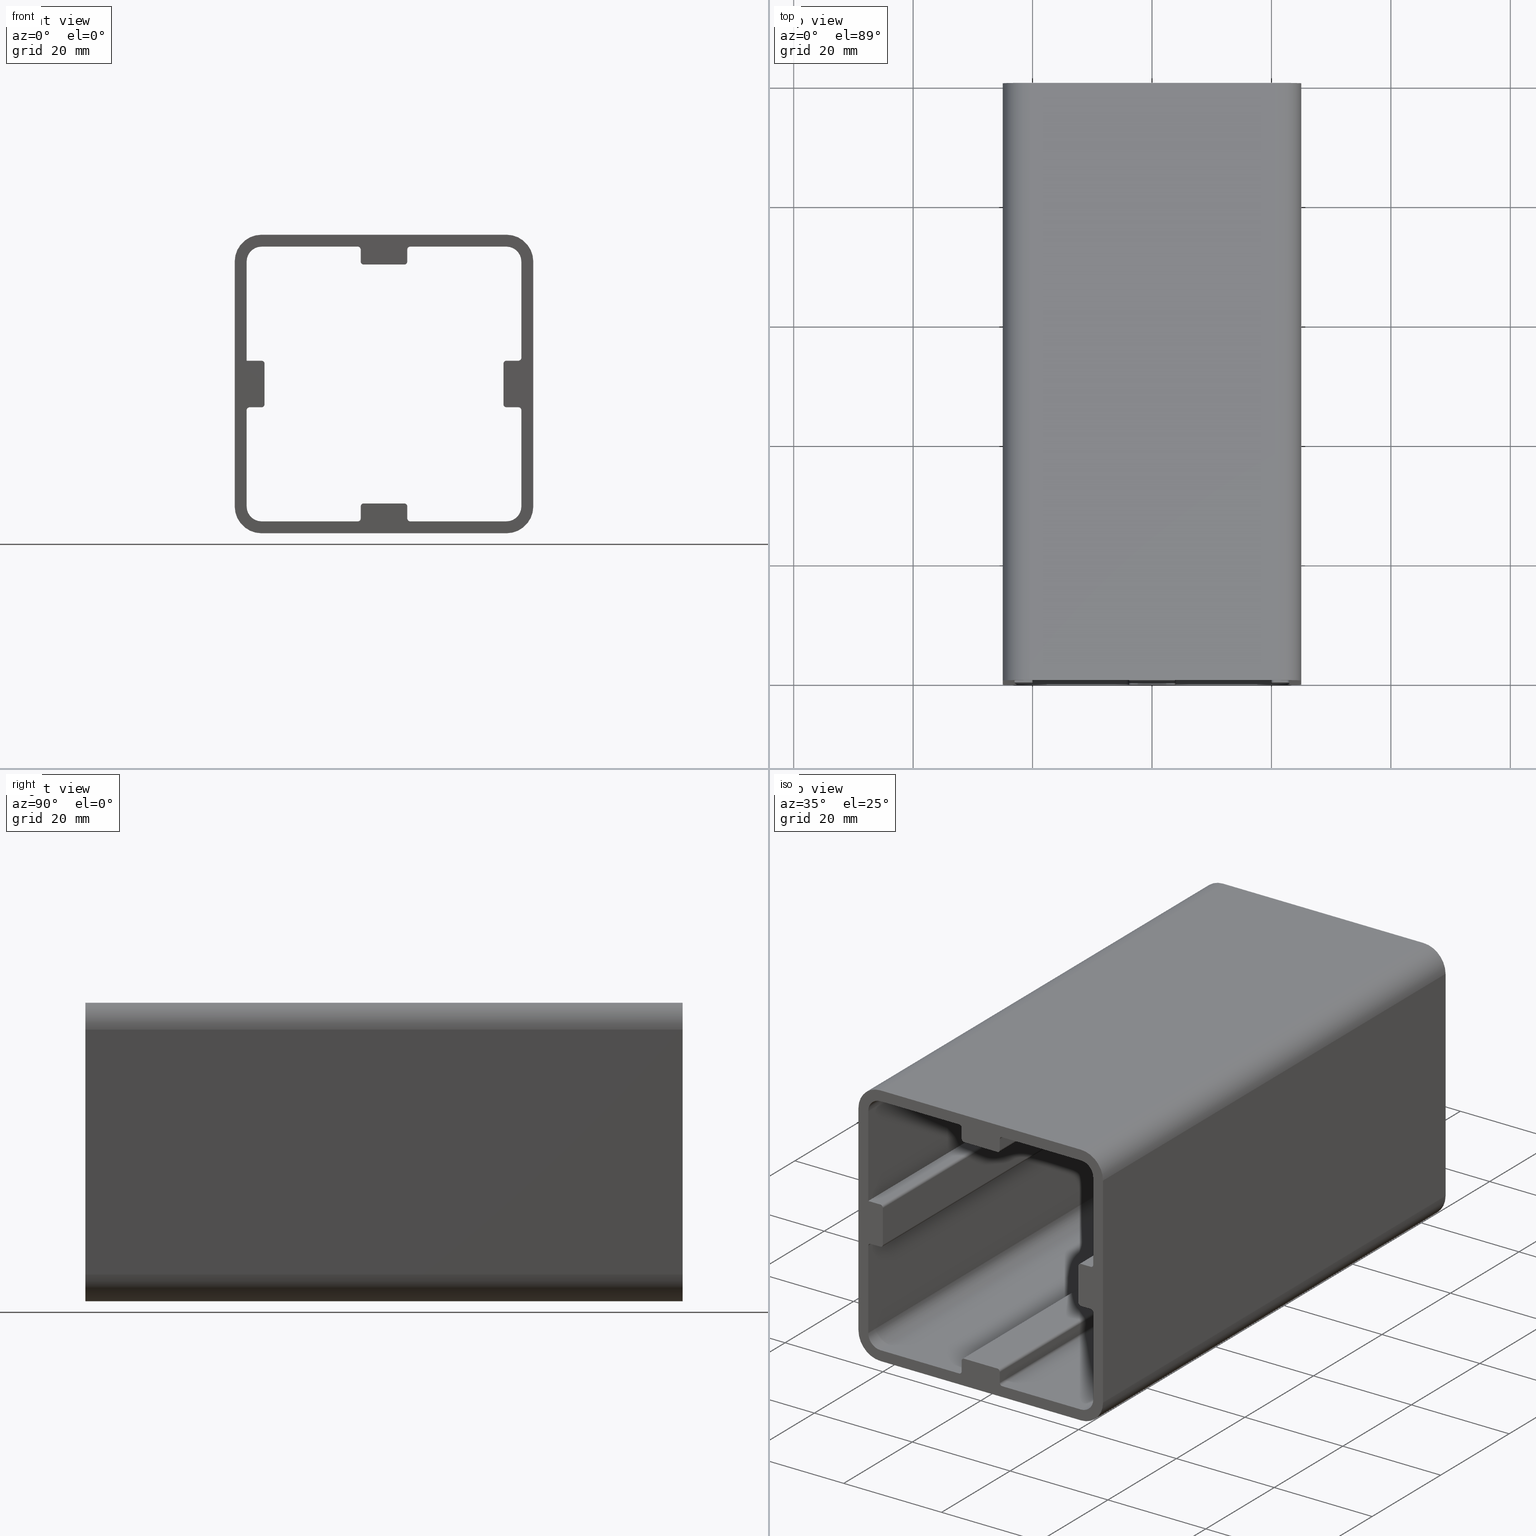
[diagram: canonical four-view strip — front | top / right | iso, engineering-drawing reading convention]
A machine part, canonical four-view strip (front | top / right | iso — engineering-drawing reading convention). The complete STEP part file that produces these views, byte-faithful:
ISO-10303-21;
HEADER;
/* Generated by software containing ST-Developer
 * from STEP Tools, Inc. (www.steptools.com) 
 */

FILE_DESCRIPTION(
/* description */ ('PROF.QUADRO ALL. 50x50 '),
/* implementation_level */ '2;1');

FILE_NAME(
/* name */ 'C:\\Users\\Tecnico5\\Documents\\BPRQQ0000026.stp',
/* time_stamp */ '2020-05-25T23:46:01+02:00',
/* author */ ('tecnico5'),
/* organization */ (''),
/* preprocessor_version */ 'ST-DEVELOPER v17.2',
/* originating_system */ 'Autodesk Inventor 2019',
/* authorisation */ '');

FILE_SCHEMA (('AUTOMOTIVE_DESIGN { 1 0 10303 214 3 1 1 }'));
ENDSEC;

DATA;
#10=MECHANICAL_DESIGN_GEOMETRIC_PRESENTATION_REPRESENTATION('',(#13),#1658);
#11=SHAPE_REPRESENTATION_RELATIONSHIP('SRR','None',#1665,#12);
#12=ADVANCED_BREP_SHAPE_REPRESENTATION('',(#14),#1657);
#13=STYLED_ITEM('',(#1674),#14);
#14=MANIFOLD_SOLID_BREP('Solido1',#968);
#15=FACE_BOUND('',#94,.T.);
#16=FACE_BOUND('',#99,.T.);
#17=PLANE('',#991);
#18=PLANE('',#1014);
#19=PLANE('',#1019);
#20=PLANE('',#1040);
#21=PLANE('',#1043);
#22=PLANE('',#1045);
#23=PLANE('',#1047);
#24=PLANE('',#1049);
#25=PLANE('',#1051);
#26=PLANE('',#1053);
#27=PLANE('',#1055);
#28=PLANE('',#1058);
#29=PLANE('',#1060);
#30=PLANE('',#1063);
#31=PLANE('',#1065);
#32=PLANE('',#1067);
#33=PLANE('',#1070);
#34=PLANE('',#1072);
#35=PLANE('',#1074);
#36=PLANE('',#1076);
#37=PLANE('',#1077);
#38=PLANE('',#1078);
#39=PLANE('',#1079);
#40=PLANE('',#1080);
#41=PLANE('',#1081);
#42=PLANE('',#1082);
#43=FACE_OUTER_BOUND('',#92,.T.);
#44=FACE_OUTER_BOUND('',#93,.T.);
#45=FACE_OUTER_BOUND('',#95,.T.);
#46=FACE_OUTER_BOUND('',#96,.T.);
#47=FACE_OUTER_BOUND('',#97,.T.);
#48=FACE_OUTER_BOUND('',#98,.T.);
#49=FACE_OUTER_BOUND('',#100,.T.);
#50=FACE_OUTER_BOUND('',#101,.T.);
#51=FACE_OUTER_BOUND('',#102,.T.);
#52=FACE_OUTER_BOUND('',#103,.T.);
#53=FACE_OUTER_BOUND('',#104,.T.);
#54=FACE_OUTER_BOUND('',#105,.T.);
#55=FACE_OUTER_BOUND('',#106,.T.);
#56=FACE_OUTER_BOUND('',#107,.T.);
#57=FACE_OUTER_BOUND('',#108,.T.);
#58=FACE_OUTER_BOUND('',#109,.T.);
#59=FACE_OUTER_BOUND('',#110,.T.);
#60=FACE_OUTER_BOUND('',#111,.T.);
#61=FACE_OUTER_BOUND('',#112,.T.);
#62=FACE_OUTER_BOUND('',#113,.T.);
#63=FACE_OUTER_BOUND('',#114,.T.);
#64=FACE_OUTER_BOUND('',#115,.T.);
#65=FACE_OUTER_BOUND('',#116,.T.);
#66=FACE_OUTER_BOUND('',#117,.T.);
#67=FACE_OUTER_BOUND('',#118,.T.);
#68=FACE_OUTER_BOUND('',#119,.T.);
#69=FACE_OUTER_BOUND('',#120,.T.);
#70=FACE_OUTER_BOUND('',#121,.T.);
#71=FACE_OUTER_BOUND('',#122,.T.);
#72=FACE_OUTER_BOUND('',#123,.T.);
#73=FACE_OUTER_BOUND('',#124,.T.);
#74=FACE_OUTER_BOUND('',#125,.T.);
#75=FACE_OUTER_BOUND('',#126,.T.);
#76=FACE_OUTER_BOUND('',#127,.T.);
#77=FACE_OUTER_BOUND('',#128,.T.);
#78=FACE_OUTER_BOUND('',#129,.T.);
#79=FACE_OUTER_BOUND('',#130,.T.);
#80=FACE_OUTER_BOUND('',#131,.T.);
#81=FACE_OUTER_BOUND('',#132,.T.);
#82=FACE_OUTER_BOUND('',#133,.T.);
#83=FACE_OUTER_BOUND('',#134,.T.);
#84=FACE_OUTER_BOUND('',#135,.T.);
#85=FACE_OUTER_BOUND('',#136,.T.);
#86=FACE_OUTER_BOUND('',#137,.T.);
#87=FACE_OUTER_BOUND('',#138,.T.);
#88=FACE_OUTER_BOUND('',#139,.T.);
#89=FACE_OUTER_BOUND('',#140,.T.);
#90=FACE_OUTER_BOUND('',#141,.T.);
#91=FACE_OUTER_BOUND('',#142,.T.);
#92=EDGE_LOOP('',(#614,#615,#616,#617));
#93=EDGE_LOOP('',(#618,#619,#620,#621,#622,#623,#624,#625));
#94=EDGE_LOOP('',(#626,#627,#628,#629,#630,#631,#632,#633,#634,#635,#636,
#637,#638,#639,#640,#641,#642,#643,#644,#645,#646,#647,#648,#649,#650,#651,
#652,#653,#654,#655,#656,#657,#658,#659,#660,#661,#662,#663,#664));
#95=EDGE_LOOP('',(#665,#666,#667,#668));
#96=EDGE_LOOP('',(#669,#670,#671,#672));
#97=EDGE_LOOP('',(#673,#674,#675,#676));
#98=EDGE_LOOP('',(#677,#678,#679,#680,#681,#682,#683,#684));
#99=EDGE_LOOP('',(#685,#686,#687,#688,#689,#690,#691,#692,#693,#694,#695,
#696,#697,#698,#699,#700,#701,#702,#703,#704,#705,#706,#707,#708,#709,#710,
#711,#712,#713,#714,#715,#716,#717,#718,#719,#720,#721,#722,#723));
#100=EDGE_LOOP('',(#724,#725,#726,#727));
#101=EDGE_LOOP('',(#728,#729,#730,#731));
#102=EDGE_LOOP('',(#732,#733,#734,#735));
#103=EDGE_LOOP('',(#736,#737,#738,#739));
#104=EDGE_LOOP('',(#740,#741,#742,#743));
#105=EDGE_LOOP('',(#744,#745,#746,#747));
#106=EDGE_LOOP('',(#748,#749,#750,#751));
#107=EDGE_LOOP('',(#752,#753,#754,#755));
#108=EDGE_LOOP('',(#756,#757,#758,#759));
#109=EDGE_LOOP('',(#760,#761,#762,#763));
#110=EDGE_LOOP('',(#764,#765,#766,#767));
#111=EDGE_LOOP('',(#768,#769,#770,#771));
#112=EDGE_LOOP('',(#772,#773,#774,#775));
#113=EDGE_LOOP('',(#776,#777,#778,#779));
#114=EDGE_LOOP('',(#780,#781,#782,#783));
#115=EDGE_LOOP('',(#784,#785,#786,#787));
#116=EDGE_LOOP('',(#788,#789,#790,#791));
#117=EDGE_LOOP('',(#792,#793,#794,#795));
#118=EDGE_LOOP('',(#796,#797,#798,#799));
#119=EDGE_LOOP('',(#800,#801,#802,#803));
#120=EDGE_LOOP('',(#804,#805,#806,#807));
#121=EDGE_LOOP('',(#808,#809,#810,#811));
#122=EDGE_LOOP('',(#812,#813,#814,#815));
#123=EDGE_LOOP('',(#816,#817,#818,#819));
#124=EDGE_LOOP('',(#820,#821,#822,#823));
#125=EDGE_LOOP('',(#824,#825,#826,#827));
#126=EDGE_LOOP('',(#828,#829,#830,#831));
#127=EDGE_LOOP('',(#832,#833,#834,#835));
#128=EDGE_LOOP('',(#836,#837,#838,#839));
#129=EDGE_LOOP('',(#840,#841,#842,#843));
#130=EDGE_LOOP('',(#844,#845,#846,#847));
#131=EDGE_LOOP('',(#848,#849,#850,#851));
#132=EDGE_LOOP('',(#852,#853,#854,#855));
#133=EDGE_LOOP('',(#856,#857,#858,#859));
#134=EDGE_LOOP('',(#860,#861,#862,#863));
#135=EDGE_LOOP('',(#864,#865,#866,#867));
#136=EDGE_LOOP('',(#868,#869,#870,#871));
#137=EDGE_LOOP('',(#872,#873,#874,#875));
#138=EDGE_LOOP('',(#876,#877,#878,#879));
#139=EDGE_LOOP('',(#880,#881,#882,#883));
#140=EDGE_LOOP('',(#884,#885,#886,#887));
#141=EDGE_LOOP('',(#888,#889,#890,#891));
#142=EDGE_LOOP('',(#892,#893,#894,#895));
#143=LINE('',#1376,#238);
#144=LINE('',#1379,#239);
#145=LINE('',#1382,#240);
#146=LINE('',#1386,#241);
#147=LINE('',#1390,#242);
#148=LINE('',#1393,#243);
#149=LINE('',#1398,#244);
#150=LINE('',#1402,#245);
#151=LINE('',#1406,#246);
#152=LINE('',#1410,#247);
#153=LINE('',#1414,#248);
#154=LINE('',#1418,#249);
#155=LINE('',#1422,#250);
#156=LINE('',#1426,#251);
#157=LINE('',#1430,#252);
#158=LINE('',#1434,#253);
#159=LINE('',#1438,#254);
#160=LINE('',#1442,#255);
#161=LINE('',#1446,#256);
#162=LINE('',#1448,#257);
#163=LINE('',#1452,#258);
#164=LINE('',#1456,#259);
#165=LINE('',#1460,#260);
#166=LINE('',#1464,#261);
#167=LINE('',#1468,#262);
#168=LINE('',#1471,#263);
#169=LINE('',#1474,#264);
#170=LINE('',#1475,#265);
#171=LINE('',#1479,#266);
#172=LINE('',#1482,#267);
#173=LINE('',#1485,#268);
#174=LINE('',#1487,#269);
#175=LINE('',#1489,#270);
#176=LINE('',#1492,#271);
#177=LINE('',#1497,#272);
#178=LINE('',#1501,#273);
#179=LINE('',#1505,#274);
#180=LINE('',#1509,#275);
#181=LINE('',#1513,#276);
#182=LINE('',#1517,#277);
#183=LINE('',#1521,#278);
#184=LINE('',#1523,#279);
#185=LINE('',#1527,#280);
#186=LINE('',#1531,#281);
#187=LINE('',#1535,#282);
#188=LINE('',#1539,#283);
#189=LINE('',#1543,#284);
#190=LINE('',#1547,#285);
#191=LINE('',#1551,#286);
#192=LINE('',#1555,#287);
#193=LINE('',#1559,#288);
#194=LINE('',#1563,#289);
#195=LINE('',#1567,#290);
#196=LINE('',#1570,#291);
#197=LINE('',#1572,#292);
#198=LINE('',#1574,#293);
#199=LINE('',#1576,#294);
#200=LINE('',#1577,#295);
#201=LINE('',#1579,#296);
#202=LINE('',#1581,#297);
#203=LINE('',#1582,#298);
#204=LINE('',#1584,#299);
#205=LINE('',#1586,#300);
#206=LINE('',#1587,#301);
#207=LINE('',#1589,#302);
#208=LINE('',#1591,#303);
#209=LINE('',#1592,#304);
#210=LINE('',#1594,#305);
#211=LINE('',#1596,#306);
#212=LINE('',#1597,#307);
#213=LINE('',#1600,#308);
#214=LINE('',#1601,#309);
#215=LINE('',#1603,#310);
#216=LINE('',#1605,#311);
#217=LINE('',#1607,#312);
#218=LINE('',#1610,#313);
#219=LINE('',#1612,#314);
#220=LINE('',#1614,#315);
#221=LINE('',#1616,#316);
#222=LINE('',#1618,#317);
#223=LINE('',#1620,#318);
#224=LINE('',#1621,#319);
#225=LINE('',#1624,#320);
#226=LINE('',#1626,#321);
#227=LINE('',#1628,#322);
#228=LINE('',#1630,#323);
#229=LINE('',#1632,#324);
#230=LINE('',#1634,#325);
#231=LINE('',#1635,#326);
#232=LINE('',#1638,#327);
#233=LINE('',#1639,#328);
#234=LINE('',#1642,#329);
#235=LINE('',#1643,#330);
#236=LINE('',#1646,#331);
#237=LINE('',#1647,#332);
#238=VECTOR('',#1089,10.);
#239=VECTOR('',#1092,10.);
#240=VECTOR('',#1095,10.);
#241=VECTOR('',#1098,10.);
#242=VECTOR('',#1101,10.);
#243=VECTOR('',#1104,10.);
#244=VECTOR('',#1107,10.);
#245=VECTOR('',#1110,10.);
#246=VECTOR('',#1113,10.);
#247=VECTOR('',#1116,10.);
#248=VECTOR('',#1119,10.);
#249=VECTOR('',#1122,10.);
#250=VECTOR('',#1125,10.);
#251=VECTOR('',#1128,10.);
#252=VECTOR('',#1131,10.);
#253=VECTOR('',#1134,10.);
#254=VECTOR('',#1137,10.);
#255=VECTOR('',#1140,10.);
#256=VECTOR('',#1143,10.);
#257=VECTOR('',#1144,10.);
#258=VECTOR('',#1147,10.);
#259=VECTOR('',#1150,10.);
#260=VECTOR('',#1153,10.);
#261=VECTOR('',#1156,10.);
#262=VECTOR('',#1159,10.);
#263=VECTOR('',#1162,10.);
#264=VECTOR('',#1165,10.);
#265=VECTOR('',#1166,10.);
#266=VECTOR('',#1171,10.);
#267=VECTOR('',#1174,10.);
#268=VECTOR('',#1177,10.);
#269=VECTOR('',#1180,10.);
#270=VECTOR('',#1181,10.);
#271=VECTOR('',#1184,10.);
#272=VECTOR('',#1187,10.);
#273=VECTOR('',#1190,10.);
#274=VECTOR('',#1193,10.);
#275=VECTOR('',#1196,10.);
#276=VECTOR('',#1199,10.);
#277=VECTOR('',#1202,10.);
#278=VECTOR('',#1205,10.);
#279=VECTOR('',#1206,10.);
#280=VECTOR('',#1209,10.);
#281=VECTOR('',#1212,10.);
#282=VECTOR('',#1215,10.);
#283=VECTOR('',#1218,10.);
#284=VECTOR('',#1221,10.);
#285=VECTOR('',#1224,10.);
#286=VECTOR('',#1227,10.);
#287=VECTOR('',#1230,10.);
#288=VECTOR('',#1233,10.);
#289=VECTOR('',#1236,10.);
#290=VECTOR('',#1239,10.);
#291=VECTOR('',#1242,10.);
#292=VECTOR('',#1245,10.);
#293=VECTOR('',#1248,10.);
#294=VECTOR('',#1251,10.);
#295=VECTOR('',#1252,10.);
#296=VECTOR('',#1255,10.);
#297=VECTOR('',#1258,10.);
#298=VECTOR('',#1259,10.);
#299=VECTOR('',#1262,10.);
#300=VECTOR('',#1265,10.);
#301=VECTOR('',#1266,10.);
#302=VECTOR('',#1269,10.);
#303=VECTOR('',#1272,10.);
#304=VECTOR('',#1273,10.);
#305=VECTOR('',#1276,10.);
#306=VECTOR('',#1279,10.);
#307=VECTOR('',#1280,10.);
#308=VECTOR('',#1285,10.);
#309=VECTOR('',#1286,10.);
#310=VECTOR('',#1289,10.);
#311=VECTOR('',#1292,10.);
#312=VECTOR('',#1295,10.);
#313=VECTOR('',#1300,10.);
#314=VECTOR('',#1303,10.);
#315=VECTOR('',#1306,10.);
#316=VECTOR('',#1309,10.);
#317=VECTOR('',#1312,10.);
#318=VECTOR('',#1315,10.);
#319=VECTOR('',#1316,10.);
#320=VECTOR('',#1321,10.);
#321=VECTOR('',#1324,10.);
#322=VECTOR('',#1327,10.);
#323=VECTOR('',#1330,10.);
#324=VECTOR('',#1333,10.);
#325=VECTOR('',#1336,10.);
#326=VECTOR('',#1337,10.);
#327=VECTOR('',#1342,10.);
#328=VECTOR('',#1343,10.);
#329=VECTOR('',#1348,10.);
#330=VECTOR('',#1349,10.);
#331=VECTOR('',#1354,10.);
#332=VECTOR('',#1355,10.);
#333=CIRCLE('',#989,4.5);
#334=CIRCLE('',#990,4.5);
#335=CIRCLE('',#992,4.5);
#336=CIRCLE('',#993,4.5);
#337=CIRCLE('',#994,4.5);
#338=CIRCLE('',#995,0.5);
#339=CIRCLE('',#996,0.5);
#340=CIRCLE('',#997,2.5);
#341=CIRCLE('',#998,0.5);
#342=CIRCLE('',#999,0.5);
#343=CIRCLE('',#1000,0.5);
#344=CIRCLE('',#1001,0.5);
#345=CIRCLE('',#1002,2.5);
#346=CIRCLE('',#1003,0.5);
#347=CIRCLE('',#1004,0.5);
#348=CIRCLE('',#1005,0.5);
#349=CIRCLE('',#1006,0.5);
#350=CIRCLE('',#1007,2.5);
#351=CIRCLE('',#1008,0.5);
#352=CIRCLE('',#1009,0.5);
#353=CIRCLE('',#1010,0.5);
#354=CIRCLE('',#1011,2.5);
#355=CIRCLE('',#1012,0.5);
#356=CIRCLE('',#1013,0.5);
#357=CIRCLE('',#1016,4.5);
#358=CIRCLE('',#1018,4.5);
#359=CIRCLE('',#1020,4.5);
#360=CIRCLE('',#1021,0.5);
#361=CIRCLE('',#1022,0.5);
#362=CIRCLE('',#1023,0.5);
#363=CIRCLE('',#1024,2.5);
#364=CIRCLE('',#1025,0.5);
#365=CIRCLE('',#1026,0.5);
#366=CIRCLE('',#1027,0.5);
#367=CIRCLE('',#1028,2.5);
#368=CIRCLE('',#1029,0.5);
#369=CIRCLE('',#1030,0.5);
#370=CIRCLE('',#1031,0.5);
#371=CIRCLE('',#1032,0.5);
#372=CIRCLE('',#1033,2.5);
#373=CIRCLE('',#1034,0.5);
#374=CIRCLE('',#1035,0.5);
#375=CIRCLE('',#1036,0.5);
#376=CIRCLE('',#1037,0.5);
#377=CIRCLE('',#1038,2.5);
#378=CIRCLE('',#1039,0.5);
#379=VERTEX_POINT('',#1372);
#380=VERTEX_POINT('',#1373);
#381=VERTEX_POINT('',#1375);
#382=VERTEX_POINT('',#1377);
#383=VERTEX_POINT('',#1381);
#384=VERTEX_POINT('',#1383);
#385=VERTEX_POINT('',#1385);
#386=VERTEX_POINT('',#1387);
#387=VERTEX_POINT('',#1389);
#388=VERTEX_POINT('',#1391);
#389=VERTEX_POINT('',#1394);
#390=VERTEX_POINT('',#1395);
#391=VERTEX_POINT('',#1397);
#392=VERTEX_POINT('',#1399);
#393=VERTEX_POINT('',#1401);
#394=VERTEX_POINT('',#1403);
#395=VERTEX_POINT('',#1405);
#396=VERTEX_POINT('',#1407);
#397=VERTEX_POINT('',#1409);
#398=VERTEX_POINT('',#1411);
#399=VERTEX_POINT('',#1413);
#400=VERTEX_POINT('',#1415);
#401=VERTEX_POINT('',#1417);
#402=VERTEX_POINT('',#1419);
#403=VERTEX_POINT('',#1421);
#404=VERTEX_POINT('',#1423);
#405=VERTEX_POINT('',#1425);
#406=VERTEX_POINT('',#1427);
#407=VERTEX_POINT('',#1429);
#408=VERTEX_POINT('',#1431);
#409=VERTEX_POINT('',#1433);
#410=VERTEX_POINT('',#1435);
#411=VERTEX_POINT('',#1437);
#412=VERTEX_POINT('',#1439);
#413=VERTEX_POINT('',#1441);
#414=VERTEX_POINT('',#1443);
#415=VERTEX_POINT('',#1445);
#416=VERTEX_POINT('',#1447);
#417=VERTEX_POINT('',#1449);
#418=VERTEX_POINT('',#1451);
#419=VERTEX_POINT('',#1453);
#420=VERTEX_POINT('',#1455);
#421=VERTEX_POINT('',#1457);
#422=VERTEX_POINT('',#1459);
#423=VERTEX_POINT('',#1461);
#424=VERTEX_POINT('',#1463);
#425=VERTEX_POINT('',#1465);
#426=VERTEX_POINT('',#1467);
#427=VERTEX_POINT('',#1469);
#428=VERTEX_POINT('',#1473);
#429=VERTEX_POINT('',#1477);
#430=VERTEX_POINT('',#1481);
#431=VERTEX_POINT('',#1483);
#432=VERTEX_POINT('',#1488);
#433=VERTEX_POINT('',#1490);
#434=VERTEX_POINT('',#1493);
#435=VERTEX_POINT('',#1494);
#436=VERTEX_POINT('',#1496);
#437=VERTEX_POINT('',#1498);
#438=VERTEX_POINT('',#1500);
#439=VERTEX_POINT('',#1502);
#440=VERTEX_POINT('',#1504);
#441=VERTEX_POINT('',#1506);
#442=VERTEX_POINT('',#1508);
#443=VERTEX_POINT('',#1510);
#444=VERTEX_POINT('',#1512);
#445=VERTEX_POINT('',#1514);
#446=VERTEX_POINT('',#1516);
#447=VERTEX_POINT('',#1518);
#448=VERTEX_POINT('',#1520);
#449=VERTEX_POINT('',#1522);
#450=VERTEX_POINT('',#1524);
#451=VERTEX_POINT('',#1526);
#452=VERTEX_POINT('',#1528);
#453=VERTEX_POINT('',#1530);
#454=VERTEX_POINT('',#1532);
#455=VERTEX_POINT('',#1534);
#456=VERTEX_POINT('',#1536);
#457=VERTEX_POINT('',#1538);
#458=VERTEX_POINT('',#1540);
#459=VERTEX_POINT('',#1542);
#460=VERTEX_POINT('',#1544);
#461=VERTEX_POINT('',#1546);
#462=VERTEX_POINT('',#1548);
#463=VERTEX_POINT('',#1550);
#464=VERTEX_POINT('',#1552);
#465=VERTEX_POINT('',#1554);
#466=VERTEX_POINT('',#1556);
#467=VERTEX_POINT('',#1558);
#468=VERTEX_POINT('',#1560);
#469=VERTEX_POINT('',#1562);
#470=VERTEX_POINT('',#1564);
#471=VERTEX_POINT('',#1566);
#472=VERTEX_POINT('',#1568);
#473=EDGE_CURVE('',#379,#380,#333,.T.);
#474=EDGE_CURVE('',#380,#381,#143,.T.);
#475=EDGE_CURVE('',#381,#382,#334,.T.);
#476=EDGE_CURVE('',#382,#379,#144,.T.);
#477=EDGE_CURVE('',#379,#383,#145,.T.);
#478=EDGE_CURVE('',#384,#383,#335,.T.);
#479=EDGE_CURVE('',#384,#385,#146,.T.);
#480=EDGE_CURVE('',#386,#385,#336,.T.);
#481=EDGE_CURVE('',#386,#387,#147,.T.);
#482=EDGE_CURVE('',#388,#387,#337,.T.);
#483=EDGE_CURVE('',#388,#380,#148,.T.);
#484=EDGE_CURVE('',#389,#390,#338,.T.);
#485=EDGE_CURVE('',#389,#391,#149,.T.);
#486=EDGE_CURVE('',#392,#391,#339,.T.);
#487=EDGE_CURVE('',#392,#393,#150,.T.);
#488=EDGE_CURVE('',#394,#393,#340,.T.);
#489=EDGE_CURVE('',#394,#395,#151,.T.);
#490=EDGE_CURVE('',#396,#395,#341,.T.);
#491=EDGE_CURVE('',#396,#397,#152,.T.);
#492=EDGE_CURVE('',#398,#397,#342,.T.);
#493=EDGE_CURVE('',#398,#399,#153,.T.);
#494=EDGE_CURVE('',#400,#399,#343,.T.);
#495=EDGE_CURVE('',#400,#401,#154,.T.);
#496=EDGE_CURVE('',#402,#401,#344,.T.);
#497=EDGE_CURVE('',#402,#403,#155,.T.);
#498=EDGE_CURVE('',#404,#403,#345,.T.);
#499=EDGE_CURVE('',#404,#405,#156,.T.);
#500=EDGE_CURVE('',#406,#405,#346,.T.);
#501=EDGE_CURVE('',#406,#407,#157,.T.);
#502=EDGE_CURVE('',#408,#407,#347,.T.);
#503=EDGE_CURVE('',#408,#409,#158,.T.);
#504=EDGE_CURVE('',#410,#409,#348,.T.);
#505=EDGE_CURVE('',#410,#411,#159,.T.);
#506=EDGE_CURVE('',#412,#411,#349,.T.);
#507=EDGE_CURVE('',#412,#413,#160,.T.);
#508=EDGE_CURVE('',#414,#413,#350,.T.);
#509=EDGE_CURVE('',#414,#415,#161,.T.);
#510=EDGE_CURVE('',#415,#416,#162,.T.);
#511=EDGE_CURVE('',#417,#416,#351,.T.);
#512=EDGE_CURVE('',#417,#418,#163,.T.);
#513=EDGE_CURVE('',#419,#418,#352,.T.);
#514=EDGE_CURVE('',#419,#420,#164,.T.);
#515=EDGE_CURVE('',#421,#420,#353,.T.);
#516=EDGE_CURVE('',#421,#422,#165,.T.);
#517=EDGE_CURVE('',#423,#422,#354,.T.);
#518=EDGE_CURVE('',#423,#424,#166,.T.);
#519=EDGE_CURVE('',#425,#424,#355,.T.);
#520=EDGE_CURVE('',#425,#426,#167,.T.);
#521=EDGE_CURVE('',#427,#426,#356,.T.);
#522=EDGE_CURVE('',#427,#390,#168,.T.);
#523=EDGE_CURVE('',#382,#428,#169,.T.);
#524=EDGE_CURVE('',#383,#428,#170,.T.);
#525=EDGE_CURVE('',#428,#429,#357,.T.);
#526=EDGE_CURVE('',#429,#384,#171,.T.);
#527=EDGE_CURVE('',#387,#430,#172,.T.);
#528=EDGE_CURVE('',#430,#431,#358,.T.);
#529=EDGE_CURVE('',#431,#388,#173,.T.);
#530=EDGE_CURVE('',#431,#381,#174,.T.);
#531=EDGE_CURVE('',#432,#430,#175,.T.);
#532=EDGE_CURVE('',#433,#432,#359,.T.);
#533=EDGE_CURVE('',#429,#433,#176,.T.);
#534=EDGE_CURVE('',#434,#435,#360,.T.);
#535=EDGE_CURVE('',#434,#436,#177,.T.);
#536=EDGE_CURVE('',#437,#436,#361,.T.);
#537=EDGE_CURVE('',#437,#438,#178,.T.);
#538=EDGE_CURVE('',#439,#438,#362,.T.);
#539=EDGE_CURVE('',#439,#440,#179,.T.);
#540=EDGE_CURVE('',#441,#440,#363,.T.);
#541=EDGE_CURVE('',#441,#442,#180,.T.);
#542=EDGE_CURVE('',#443,#442,#364,.T.);
#543=EDGE_CURVE('',#443,#444,#181,.T.);
#544=EDGE_CURVE('',#445,#444,#365,.T.);
#545=EDGE_CURVE('',#445,#446,#182,.T.);
#546=EDGE_CURVE('',#447,#446,#366,.T.);
#547=EDGE_CURVE('',#447,#448,#183,.T.);
#548=EDGE_CURVE('',#448,#449,#184,.T.);
#549=EDGE_CURVE('',#450,#449,#367,.T.);
#550=EDGE_CURVE('',#450,#451,#185,.T.);
#551=EDGE_CURVE('',#452,#451,#368,.T.);
#552=EDGE_CURVE('',#452,#453,#186,.T.);
#553=EDGE_CURVE('',#454,#453,#369,.T.);
#554=EDGE_CURVE('',#454,#455,#187,.T.);
#555=EDGE_CURVE('',#456,#455,#370,.T.);
#556=EDGE_CURVE('',#456,#457,#188,.T.);
#557=EDGE_CURVE('',#458,#457,#371,.T.);
#558=EDGE_CURVE('',#458,#459,#189,.T.);
#559=EDGE_CURVE('',#460,#459,#372,.T.);
#560=EDGE_CURVE('',#460,#461,#190,.T.);
#561=EDGE_CURVE('',#462,#461,#373,.T.);
#562=EDGE_CURVE('',#462,#463,#191,.T.);
#563=EDGE_CURVE('',#464,#463,#374,.T.);
#564=EDGE_CURVE('',#464,#465,#192,.T.);
#565=EDGE_CURVE('',#466,#465,#375,.T.);
#566=EDGE_CURVE('',#466,#467,#193,.T.);
#567=EDGE_CURVE('',#468,#467,#376,.T.);
#568=EDGE_CURVE('',#468,#469,#194,.T.);
#569=EDGE_CURVE('',#470,#469,#377,.T.);
#570=EDGE_CURVE('',#470,#471,#195,.T.);
#571=EDGE_CURVE('',#472,#471,#378,.T.);
#572=EDGE_CURVE('',#472,#435,#196,.T.);
#573=EDGE_CURVE('',#432,#386,#197,.T.);
#574=EDGE_CURVE('',#385,#433,#198,.T.);
#575=EDGE_CURVE('',#449,#414,#199,.T.);
#576=EDGE_CURVE('',#413,#450,#200,.T.);
#577=EDGE_CURVE('',#448,#415,#201,.T.);
#578=EDGE_CURVE('',#440,#423,#202,.T.);
#579=EDGE_CURVE('',#422,#441,#203,.T.);
#580=EDGE_CURVE('',#424,#439,#204,.T.);
#581=EDGE_CURVE('',#459,#404,#205,.T.);
#582=EDGE_CURVE('',#403,#460,#206,.T.);
#583=EDGE_CURVE('',#405,#458,#207,.T.);
#584=EDGE_CURVE('',#469,#394,#208,.T.);
#585=EDGE_CURVE('',#393,#470,#209,.T.);
#586=EDGE_CURVE('',#395,#468,#210,.T.);
#587=EDGE_CURVE('',#471,#392,#211,.T.);
#588=EDGE_CURVE('',#391,#472,#212,.T.);
#589=EDGE_CURVE('',#390,#434,#213,.T.);
#590=EDGE_CURVE('',#435,#389,#214,.T.);
#591=EDGE_CURVE('',#436,#427,#215,.T.);
#592=EDGE_CURVE('',#426,#437,#216,.T.);
#593=EDGE_CURVE('',#438,#425,#217,.T.);
#594=EDGE_CURVE('',#467,#396,#218,.T.);
#595=EDGE_CURVE('',#397,#466,#219,.T.);
#596=EDGE_CURVE('',#465,#398,#220,.T.);
#597=EDGE_CURVE('',#399,#464,#221,.T.);
#598=EDGE_CURVE('',#463,#400,#222,.T.);
#599=EDGE_CURVE('',#461,#402,#223,.T.);
#600=EDGE_CURVE('',#401,#462,#224,.T.);
#601=EDGE_CURVE('',#457,#406,#225,.T.);
#602=EDGE_CURVE('',#407,#456,#226,.T.);
#603=EDGE_CURVE('',#455,#408,#227,.T.);
#604=EDGE_CURVE('',#409,#454,#228,.T.);
#605=EDGE_CURVE('',#453,#410,#229,.T.);
#606=EDGE_CURVE('',#451,#412,#230,.T.);
#607=EDGE_CURVE('',#411,#452,#231,.T.);
#608=EDGE_CURVE('',#442,#421,#232,.T.);
#609=EDGE_CURVE('',#420,#443,#233,.T.);
#610=EDGE_CURVE('',#416,#447,#234,.T.);
#611=EDGE_CURVE('',#446,#417,#235,.T.);
#612=EDGE_CURVE('',#418,#445,#236,.T.);
#613=EDGE_CURVE('',#444,#419,#237,.T.);
#614=ORIENTED_EDGE('',*,*,#473,.T.);
#615=ORIENTED_EDGE('',*,*,#474,.T.);
#616=ORIENTED_EDGE('',*,*,#475,.T.);
#617=ORIENTED_EDGE('',*,*,#476,.T.);
#618=ORIENTED_EDGE('',*,*,#473,.F.);
#619=ORIENTED_EDGE('',*,*,#477,.T.);
#620=ORIENTED_EDGE('',*,*,#478,.F.);
#621=ORIENTED_EDGE('',*,*,#479,.T.);
#622=ORIENTED_EDGE('',*,*,#480,.F.);
#623=ORIENTED_EDGE('',*,*,#481,.T.);
#624=ORIENTED_EDGE('',*,*,#482,.F.);
#625=ORIENTED_EDGE('',*,*,#483,.T.);
#626=ORIENTED_EDGE('',*,*,#484,.F.);
#627=ORIENTED_EDGE('',*,*,#485,.T.);
#628=ORIENTED_EDGE('',*,*,#486,.F.);
#629=ORIENTED_EDGE('',*,*,#487,.T.);
#630=ORIENTED_EDGE('',*,*,#488,.F.);
#631=ORIENTED_EDGE('',*,*,#489,.T.);
#632=ORIENTED_EDGE('',*,*,#490,.F.);
#633=ORIENTED_EDGE('',*,*,#491,.T.);
#634=ORIENTED_EDGE('',*,*,#492,.F.);
#635=ORIENTED_EDGE('',*,*,#493,.T.);
#636=ORIENTED_EDGE('',*,*,#494,.F.);
#637=ORIENTED_EDGE('',*,*,#495,.T.);
#638=ORIENTED_EDGE('',*,*,#496,.F.);
#639=ORIENTED_EDGE('',*,*,#497,.T.);
#640=ORIENTED_EDGE('',*,*,#498,.F.);
#641=ORIENTED_EDGE('',*,*,#499,.T.);
#642=ORIENTED_EDGE('',*,*,#500,.F.);
#643=ORIENTED_EDGE('',*,*,#501,.T.);
#644=ORIENTED_EDGE('',*,*,#502,.F.);
#645=ORIENTED_EDGE('',*,*,#503,.T.);
#646=ORIENTED_EDGE('',*,*,#504,.F.);
#647=ORIENTED_EDGE('',*,*,#505,.T.);
#648=ORIENTED_EDGE('',*,*,#506,.F.);
#649=ORIENTED_EDGE('',*,*,#507,.T.);
#650=ORIENTED_EDGE('',*,*,#508,.F.);
#651=ORIENTED_EDGE('',*,*,#509,.T.);
#652=ORIENTED_EDGE('',*,*,#510,.T.);
#653=ORIENTED_EDGE('',*,*,#511,.F.);
#654=ORIENTED_EDGE('',*,*,#512,.T.);
#655=ORIENTED_EDGE('',*,*,#513,.F.);
#656=ORIENTED_EDGE('',*,*,#514,.T.);
#657=ORIENTED_EDGE('',*,*,#515,.F.);
#658=ORIENTED_EDGE('',*,*,#516,.T.);
#659=ORIENTED_EDGE('',*,*,#517,.F.);
#660=ORIENTED_EDGE('',*,*,#518,.T.);
#661=ORIENTED_EDGE('',*,*,#519,.F.);
#662=ORIENTED_EDGE('',*,*,#520,.T.);
#663=ORIENTED_EDGE('',*,*,#521,.F.);
#664=ORIENTED_EDGE('',*,*,#522,.T.);
#665=ORIENTED_EDGE('',*,*,#476,.F.);
#666=ORIENTED_EDGE('',*,*,#523,.T.);
#667=ORIENTED_EDGE('',*,*,#524,.F.);
#668=ORIENTED_EDGE('',*,*,#477,.F.);
#669=ORIENTED_EDGE('',*,*,#478,.T.);
#670=ORIENTED_EDGE('',*,*,#524,.T.);
#671=ORIENTED_EDGE('',*,*,#525,.T.);
#672=ORIENTED_EDGE('',*,*,#526,.T.);
#673=ORIENTED_EDGE('',*,*,#482,.T.);
#674=ORIENTED_EDGE('',*,*,#527,.T.);
#675=ORIENTED_EDGE('',*,*,#528,.T.);
#676=ORIENTED_EDGE('',*,*,#529,.T.);
#677=ORIENTED_EDGE('',*,*,#475,.F.);
#678=ORIENTED_EDGE('',*,*,#530,.F.);
#679=ORIENTED_EDGE('',*,*,#528,.F.);
#680=ORIENTED_EDGE('',*,*,#531,.F.);
#681=ORIENTED_EDGE('',*,*,#532,.F.);
#682=ORIENTED_EDGE('',*,*,#533,.F.);
#683=ORIENTED_EDGE('',*,*,#525,.F.);
#684=ORIENTED_EDGE('',*,*,#523,.F.);
#685=ORIENTED_EDGE('',*,*,#534,.F.);
#686=ORIENTED_EDGE('',*,*,#535,.T.);
#687=ORIENTED_EDGE('',*,*,#536,.F.);
#688=ORIENTED_EDGE('',*,*,#537,.T.);
#689=ORIENTED_EDGE('',*,*,#538,.F.);
#690=ORIENTED_EDGE('',*,*,#539,.T.);
#691=ORIENTED_EDGE('',*,*,#540,.F.);
#692=ORIENTED_EDGE('',*,*,#541,.T.);
#693=ORIENTED_EDGE('',*,*,#542,.F.);
#694=ORIENTED_EDGE('',*,*,#543,.T.);
#695=ORIENTED_EDGE('',*,*,#544,.F.);
#696=ORIENTED_EDGE('',*,*,#545,.T.);
#697=ORIENTED_EDGE('',*,*,#546,.F.);
#698=ORIENTED_EDGE('',*,*,#547,.T.);
#699=ORIENTED_EDGE('',*,*,#548,.T.);
#700=ORIENTED_EDGE('',*,*,#549,.F.);
#701=ORIENTED_EDGE('',*,*,#550,.T.);
#702=ORIENTED_EDGE('',*,*,#551,.F.);
#703=ORIENTED_EDGE('',*,*,#552,.T.);
#704=ORIENTED_EDGE('',*,*,#553,.F.);
#705=ORIENTED_EDGE('',*,*,#554,.T.);
#706=ORIENTED_EDGE('',*,*,#555,.F.);
#707=ORIENTED_EDGE('',*,*,#556,.T.);
#708=ORIENTED_EDGE('',*,*,#557,.F.);
#709=ORIENTED_EDGE('',*,*,#558,.T.);
#710=ORIENTED_EDGE('',*,*,#559,.F.);
#711=ORIENTED_EDGE('',*,*,#560,.T.);
#712=ORIENTED_EDGE('',*,*,#561,.F.);
#713=ORIENTED_EDGE('',*,*,#562,.T.);
#714=ORIENTED_EDGE('',*,*,#563,.F.);
#715=ORIENTED_EDGE('',*,*,#564,.T.);
#716=ORIENTED_EDGE('',*,*,#565,.F.);
#717=ORIENTED_EDGE('',*,*,#566,.T.);
#718=ORIENTED_EDGE('',*,*,#567,.F.);
#719=ORIENTED_EDGE('',*,*,#568,.T.);
#720=ORIENTED_EDGE('',*,*,#569,.F.);
#721=ORIENTED_EDGE('',*,*,#570,.T.);
#722=ORIENTED_EDGE('',*,*,#571,.F.);
#723=ORIENTED_EDGE('',*,*,#572,.T.);
#724=ORIENTED_EDGE('',*,*,#527,.F.);
#725=ORIENTED_EDGE('',*,*,#481,.F.);
#726=ORIENTED_EDGE('',*,*,#573,.F.);
#727=ORIENTED_EDGE('',*,*,#531,.T.);
#728=ORIENTED_EDGE('',*,*,#480,.T.);
#729=ORIENTED_EDGE('',*,*,#574,.T.);
#730=ORIENTED_EDGE('',*,*,#532,.T.);
#731=ORIENTED_EDGE('',*,*,#573,.T.);
#732=ORIENTED_EDGE('',*,*,#549,.T.);
#733=ORIENTED_EDGE('',*,*,#575,.T.);
#734=ORIENTED_EDGE('',*,*,#508,.T.);
#735=ORIENTED_EDGE('',*,*,#576,.T.);
#736=ORIENTED_EDGE('',*,*,#575,.F.);
#737=ORIENTED_EDGE('',*,*,#548,.F.);
#738=ORIENTED_EDGE('',*,*,#577,.T.);
#739=ORIENTED_EDGE('',*,*,#509,.F.);
#740=ORIENTED_EDGE('',*,*,#540,.T.);
#741=ORIENTED_EDGE('',*,*,#578,.T.);
#742=ORIENTED_EDGE('',*,*,#517,.T.);
#743=ORIENTED_EDGE('',*,*,#579,.T.);
#744=ORIENTED_EDGE('',*,*,#578,.F.);
#745=ORIENTED_EDGE('',*,*,#539,.F.);
#746=ORIENTED_EDGE('',*,*,#580,.F.);
#747=ORIENTED_EDGE('',*,*,#518,.F.);
#748=ORIENTED_EDGE('',*,*,#559,.T.);
#749=ORIENTED_EDGE('',*,*,#581,.T.);
#750=ORIENTED_EDGE('',*,*,#498,.T.);
#751=ORIENTED_EDGE('',*,*,#582,.T.);
#752=ORIENTED_EDGE('',*,*,#581,.F.);
#753=ORIENTED_EDGE('',*,*,#558,.F.);
#754=ORIENTED_EDGE('',*,*,#583,.F.);
#755=ORIENTED_EDGE('',*,*,#499,.F.);
#756=ORIENTED_EDGE('',*,*,#569,.T.);
#757=ORIENTED_EDGE('',*,*,#584,.T.);
#758=ORIENTED_EDGE('',*,*,#488,.T.);
#759=ORIENTED_EDGE('',*,*,#585,.T.);
#760=ORIENTED_EDGE('',*,*,#584,.F.);
#761=ORIENTED_EDGE('',*,*,#568,.F.);
#762=ORIENTED_EDGE('',*,*,#586,.F.);
#763=ORIENTED_EDGE('',*,*,#489,.F.);
#764=ORIENTED_EDGE('',*,*,#571,.T.);
#765=ORIENTED_EDGE('',*,*,#587,.T.);
#766=ORIENTED_EDGE('',*,*,#486,.T.);
#767=ORIENTED_EDGE('',*,*,#588,.T.);
#768=ORIENTED_EDGE('',*,*,#585,.F.);
#769=ORIENTED_EDGE('',*,*,#487,.F.);
#770=ORIENTED_EDGE('',*,*,#587,.F.);
#771=ORIENTED_EDGE('',*,*,#570,.F.);
#772=ORIENTED_EDGE('',*,*,#484,.T.);
#773=ORIENTED_EDGE('',*,*,#589,.T.);
#774=ORIENTED_EDGE('',*,*,#534,.T.);
#775=ORIENTED_EDGE('',*,*,#590,.T.);
#776=ORIENTED_EDGE('',*,*,#589,.F.);
#777=ORIENTED_EDGE('',*,*,#522,.F.);
#778=ORIENTED_EDGE('',*,*,#591,.F.);
#779=ORIENTED_EDGE('',*,*,#535,.F.);
#780=ORIENTED_EDGE('',*,*,#521,.T.);
#781=ORIENTED_EDGE('',*,*,#592,.T.);
#782=ORIENTED_EDGE('',*,*,#536,.T.);
#783=ORIENTED_EDGE('',*,*,#591,.T.);
#784=ORIENTED_EDGE('',*,*,#592,.F.);
#785=ORIENTED_EDGE('',*,*,#520,.F.);
#786=ORIENTED_EDGE('',*,*,#593,.F.);
#787=ORIENTED_EDGE('',*,*,#537,.F.);
#788=ORIENTED_EDGE('',*,*,#538,.T.);
#789=ORIENTED_EDGE('',*,*,#593,.T.);
#790=ORIENTED_EDGE('',*,*,#519,.T.);
#791=ORIENTED_EDGE('',*,*,#580,.T.);
#792=ORIENTED_EDGE('',*,*,#567,.T.);
#793=ORIENTED_EDGE('',*,*,#594,.T.);
#794=ORIENTED_EDGE('',*,*,#490,.T.);
#795=ORIENTED_EDGE('',*,*,#586,.T.);
#796=ORIENTED_EDGE('',*,*,#594,.F.);
#797=ORIENTED_EDGE('',*,*,#566,.F.);
#798=ORIENTED_EDGE('',*,*,#595,.F.);
#799=ORIENTED_EDGE('',*,*,#491,.F.);
#800=ORIENTED_EDGE('',*,*,#492,.T.);
#801=ORIENTED_EDGE('',*,*,#595,.T.);
#802=ORIENTED_EDGE('',*,*,#565,.T.);
#803=ORIENTED_EDGE('',*,*,#596,.T.);
#804=ORIENTED_EDGE('',*,*,#596,.F.);
#805=ORIENTED_EDGE('',*,*,#564,.F.);
#806=ORIENTED_EDGE('',*,*,#597,.F.);
#807=ORIENTED_EDGE('',*,*,#493,.F.);
#808=ORIENTED_EDGE('',*,*,#494,.T.);
#809=ORIENTED_EDGE('',*,*,#597,.T.);
#810=ORIENTED_EDGE('',*,*,#563,.T.);
#811=ORIENTED_EDGE('',*,*,#598,.T.);
#812=ORIENTED_EDGE('',*,*,#561,.T.);
#813=ORIENTED_EDGE('',*,*,#599,.T.);
#814=ORIENTED_EDGE('',*,*,#496,.T.);
#815=ORIENTED_EDGE('',*,*,#600,.T.);
#816=ORIENTED_EDGE('',*,*,#582,.F.);
#817=ORIENTED_EDGE('',*,*,#497,.F.);
#818=ORIENTED_EDGE('',*,*,#599,.F.);
#819=ORIENTED_EDGE('',*,*,#560,.F.);
#820=ORIENTED_EDGE('',*,*,#557,.T.);
#821=ORIENTED_EDGE('',*,*,#601,.T.);
#822=ORIENTED_EDGE('',*,*,#500,.T.);
#823=ORIENTED_EDGE('',*,*,#583,.T.);
#824=ORIENTED_EDGE('',*,*,#601,.F.);
#825=ORIENTED_EDGE('',*,*,#556,.F.);
#826=ORIENTED_EDGE('',*,*,#602,.F.);
#827=ORIENTED_EDGE('',*,*,#501,.F.);
#828=ORIENTED_EDGE('',*,*,#502,.T.);
#829=ORIENTED_EDGE('',*,*,#602,.T.);
#830=ORIENTED_EDGE('',*,*,#555,.T.);
#831=ORIENTED_EDGE('',*,*,#603,.T.);
#832=ORIENTED_EDGE('',*,*,#603,.F.);
#833=ORIENTED_EDGE('',*,*,#554,.F.);
#834=ORIENTED_EDGE('',*,*,#604,.F.);
#835=ORIENTED_EDGE('',*,*,#503,.F.);
#836=ORIENTED_EDGE('',*,*,#504,.T.);
#837=ORIENTED_EDGE('',*,*,#604,.T.);
#838=ORIENTED_EDGE('',*,*,#553,.T.);
#839=ORIENTED_EDGE('',*,*,#605,.T.);
#840=ORIENTED_EDGE('',*,*,#551,.T.);
#841=ORIENTED_EDGE('',*,*,#606,.T.);
#842=ORIENTED_EDGE('',*,*,#506,.T.);
#843=ORIENTED_EDGE('',*,*,#607,.T.);
#844=ORIENTED_EDGE('',*,*,#576,.F.);
#845=ORIENTED_EDGE('',*,*,#507,.F.);
#846=ORIENTED_EDGE('',*,*,#606,.F.);
#847=ORIENTED_EDGE('',*,*,#550,.F.);
#848=ORIENTED_EDGE('',*,*,#542,.T.);
#849=ORIENTED_EDGE('',*,*,#608,.T.);
#850=ORIENTED_EDGE('',*,*,#515,.T.);
#851=ORIENTED_EDGE('',*,*,#609,.T.);
#852=ORIENTED_EDGE('',*,*,#579,.F.);
#853=ORIENTED_EDGE('',*,*,#516,.F.);
#854=ORIENTED_EDGE('',*,*,#608,.F.);
#855=ORIENTED_EDGE('',*,*,#541,.F.);
#856=ORIENTED_EDGE('',*,*,#511,.T.);
#857=ORIENTED_EDGE('',*,*,#610,.T.);
#858=ORIENTED_EDGE('',*,*,#546,.T.);
#859=ORIENTED_EDGE('',*,*,#611,.T.);
#860=ORIENTED_EDGE('',*,*,#610,.F.);
#861=ORIENTED_EDGE('',*,*,#510,.F.);
#862=ORIENTED_EDGE('',*,*,#577,.F.);
#863=ORIENTED_EDGE('',*,*,#547,.F.);
#864=ORIENTED_EDGE('',*,*,#513,.T.);
#865=ORIENTED_EDGE('',*,*,#612,.T.);
#866=ORIENTED_EDGE('',*,*,#544,.T.);
#867=ORIENTED_EDGE('',*,*,#613,.T.);
#868=ORIENTED_EDGE('',*,*,#609,.F.);
#869=ORIENTED_EDGE('',*,*,#514,.F.);
#870=ORIENTED_EDGE('',*,*,#613,.F.);
#871=ORIENTED_EDGE('',*,*,#543,.F.);
#872=ORIENTED_EDGE('',*,*,#605,.F.);
#873=ORIENTED_EDGE('',*,*,#552,.F.);
#874=ORIENTED_EDGE('',*,*,#607,.F.);
#875=ORIENTED_EDGE('',*,*,#505,.F.);
#876=ORIENTED_EDGE('',*,*,#611,.F.);
#877=ORIENTED_EDGE('',*,*,#545,.F.);
#878=ORIENTED_EDGE('',*,*,#612,.F.);
#879=ORIENTED_EDGE('',*,*,#512,.F.);
#880=ORIENTED_EDGE('',*,*,#588,.F.);
#881=ORIENTED_EDGE('',*,*,#485,.F.);
#882=ORIENTED_EDGE('',*,*,#590,.F.);
#883=ORIENTED_EDGE('',*,*,#572,.F.);
#884=ORIENTED_EDGE('',*,*,#598,.F.);
#885=ORIENTED_EDGE('',*,*,#562,.F.);
#886=ORIENTED_EDGE('',*,*,#600,.F.);
#887=ORIENTED_EDGE('',*,*,#495,.F.);
#888=ORIENTED_EDGE('',*,*,#474,.F.);
#889=ORIENTED_EDGE('',*,*,#483,.F.);
#890=ORIENTED_EDGE('',*,*,#529,.F.);
#891=ORIENTED_EDGE('',*,*,#530,.T.);
#892=ORIENTED_EDGE('',*,*,#526,.F.);
#893=ORIENTED_EDGE('',*,*,#533,.T.);
#894=ORIENTED_EDGE('',*,*,#574,.F.);
#895=ORIENTED_EDGE('',*,*,#479,.F.);
#896=CYLINDRICAL_SURFACE('',#988,4.5);
#897=CYLINDRICAL_SURFACE('',#1015,4.5);
#898=CYLINDRICAL_SURFACE('',#1017,4.5);
#899=CYLINDRICAL_SURFACE('',#1041,4.5);
#900=CYLINDRICAL_SURFACE('',#1042,2.5);
#901=CYLINDRICAL_SURFACE('',#1044,2.5);
#902=CYLINDRICAL_SURFACE('',#1046,2.5);
#903=CYLINDRICAL_SURFACE('',#1048,2.5);
#904=CYLINDRICAL_SURFACE('',#1050,0.5);
#905=CYLINDRICAL_SURFACE('',#1052,0.5);
#906=CYLINDRICAL_SURFACE('',#1054,0.5);
#907=CYLINDRICAL_SURFACE('',#1056,0.5);
#908=CYLINDRICAL_SURFACE('',#1057,0.5);
#909=CYLINDRICAL_SURFACE('',#1059,0.5);
#910=CYLINDRICAL_SURFACE('',#1061,0.5);
#911=CYLINDRICAL_SURFACE('',#1062,0.5);
#912=CYLINDRICAL_SURFACE('',#1064,0.5);
#913=CYLINDRICAL_SURFACE('',#1066,0.5);
#914=CYLINDRICAL_SURFACE('',#1068,0.5);
#915=CYLINDRICAL_SURFACE('',#1069,0.5);
#916=CYLINDRICAL_SURFACE('',#1071,0.5);
#917=CYLINDRICAL_SURFACE('',#1073,0.5);
#918=CYLINDRICAL_SURFACE('',#1075,0.5);
#919=ADVANCED_FACE('',(#43),#896,.T.);
#920=ADVANCED_FACE('',(#44,#15),#17,.T.);
#921=ADVANCED_FACE('',(#45),#18,.T.);
#922=ADVANCED_FACE('',(#46),#897,.T.);
#923=ADVANCED_FACE('',(#47),#898,.T.);
#924=ADVANCED_FACE('',(#48,#16),#19,.F.);
#925=ADVANCED_FACE('',(#49),#20,.T.);
#926=ADVANCED_FACE('',(#50),#899,.T.);
#927=ADVANCED_FACE('',(#51),#900,.F.);
#928=ADVANCED_FACE('',(#52),#21,.F.);
#929=ADVANCED_FACE('',(#53),#901,.F.);
#930=ADVANCED_FACE('',(#54),#22,.F.);
#931=ADVANCED_FACE('',(#55),#902,.F.);
#932=ADVANCED_FACE('',(#56),#23,.F.);
#933=ADVANCED_FACE('',(#57),#903,.F.);
#934=ADVANCED_FACE('',(#58),#24,.F.);
#935=ADVANCED_FACE('',(#59),#904,.F.);
#936=ADVANCED_FACE('',(#60),#25,.F.);
#937=ADVANCED_FACE('',(#61),#905,.T.);
#938=ADVANCED_FACE('',(#62),#26,.F.);
#939=ADVANCED_FACE('',(#63),#906,.T.);
#940=ADVANCED_FACE('',(#64),#27,.F.);
#941=ADVANCED_FACE('',(#65),#907,.F.);
#942=ADVANCED_FACE('',(#66),#908,.F.);
#943=ADVANCED_FACE('',(#67),#28,.F.);
#944=ADVANCED_FACE('',(#68),#909,.T.);
#945=ADVANCED_FACE('',(#69),#29,.F.);
#946=ADVANCED_FACE('',(#70),#910,.T.);
#947=ADVANCED_FACE('',(#71),#911,.F.);
#948=ADVANCED_FACE('',(#72),#30,.F.);
#949=ADVANCED_FACE('',(#73),#912,.F.);
#950=ADVANCED_FACE('',(#74),#31,.F.);
#951=ADVANCED_FACE('',(#75),#913,.T.);
#952=ADVANCED_FACE('',(#76),#32,.F.);
#953=ADVANCED_FACE('',(#77),#914,.T.);
#954=ADVANCED_FACE('',(#78),#915,.F.);
#955=ADVANCED_FACE('',(#79),#33,.F.);
#956=ADVANCED_FACE('',(#80),#916,.F.);
#957=ADVANCED_FACE('',(#81),#34,.F.);
#958=ADVANCED_FACE('',(#82),#917,.T.);
#959=ADVANCED_FACE('',(#83),#35,.F.);
#960=ADVANCED_FACE('',(#84),#918,.T.);
#961=ADVANCED_FACE('',(#85),#36,.F.);
#962=ADVANCED_FACE('',(#86),#37,.F.);
#963=ADVANCED_FACE('',(#87),#38,.F.);
#964=ADVANCED_FACE('',(#88),#39,.F.);
#965=ADVANCED_FACE('',(#89),#40,.F.);
#966=ADVANCED_FACE('',(#90),#41,.T.);
#967=ADVANCED_FACE('',(#91),#42,.T.);
#968=CLOSED_SHELL('',(#919,#920,#921,#922,#923,#924,#925,#926,#927,#928,
#929,#930,#931,#932,#933,#934,#935,#936,#937,#938,#939,#940,#941,#942,#943,
#944,#945,#946,#947,#948,#949,#950,#951,#952,#953,#954,#955,#956,#957,#958,
#959,#960,#961,#962,#963,#964,#965,#966,#967));
#969=DERIVED_UNIT_ELEMENT(#971,1.);
#970=DERIVED_UNIT_ELEMENT(#1660,3.);
#971=(
MASS_UNIT()
NAMED_UNIT(*)
SI_UNIT($,.GRAM.)
);
#972=DERIVED_UNIT((#969,#970));
#973=MEASURE_REPRESENTATION_ITEM('density measure',
POSITIVE_RATIO_MEASURE(2.7),#972);
#974=PROPERTY_DEFINITION_REPRESENTATION(#979,#976);
#975=PROPERTY_DEFINITION_REPRESENTATION(#980,#977);
#976=REPRESENTATION('material name',(#978),#1657);
#977=REPRESENTATION('density',(#973),#1657);
#978=DESCRIPTIVE_REPRESENTATION_ITEM('Alluminio 6060','Alluminio 6060');
#979=PROPERTY_DEFINITION('material property','material name',#1667);
#980=PROPERTY_DEFINITION('material property','density of part',#1667);
#981=DATE_TIME_ROLE('creation_date');
#982=APPLIED_DATE_AND_TIME_ASSIGNMENT(#983,#981,(#1667));
#983=DATE_AND_TIME(#984,#985);
#984=CALENDAR_DATE(2020,25,5);
#985=LOCAL_TIME(21,23,56.,#986);
#986=COORDINATED_UNIVERSAL_TIME_OFFSET(0,0,.BEHIND.);
#987=AXIS2_PLACEMENT_3D('placement',#1370,#1083,#1084);
#988=AXIS2_PLACEMENT_3D('',#1371,#1085,#1086);
#989=AXIS2_PLACEMENT_3D('',#1374,#1087,#1088);
#990=AXIS2_PLACEMENT_3D('',#1378,#1090,#1091);
#991=AXIS2_PLACEMENT_3D('',#1380,#1093,#1094);
#992=AXIS2_PLACEMENT_3D('',#1384,#1096,#1097);
#993=AXIS2_PLACEMENT_3D('',#1388,#1099,#1100);
#994=AXIS2_PLACEMENT_3D('',#1392,#1102,#1103);
#995=AXIS2_PLACEMENT_3D('',#1396,#1105,#1106);
#996=AXIS2_PLACEMENT_3D('',#1400,#1108,#1109);
#997=AXIS2_PLACEMENT_3D('',#1404,#1111,#1112);
#998=AXIS2_PLACEMENT_3D('',#1408,#1114,#1115);
#999=AXIS2_PLACEMENT_3D('',#1412,#1117,#1118);
#1000=AXIS2_PLACEMENT_3D('',#1416,#1120,#1121);
#1001=AXIS2_PLACEMENT_3D('',#1420,#1123,#1124);
#1002=AXIS2_PLACEMENT_3D('',#1424,#1126,#1127);
#1003=AXIS2_PLACEMENT_3D('',#1428,#1129,#1130);
#1004=AXIS2_PLACEMENT_3D('',#1432,#1132,#1133);
#1005=AXIS2_PLACEMENT_3D('',#1436,#1135,#1136);
#1006=AXIS2_PLACEMENT_3D('',#1440,#1138,#1139);
#1007=AXIS2_PLACEMENT_3D('',#1444,#1141,#1142);
#1008=AXIS2_PLACEMENT_3D('',#1450,#1145,#1146);
#1009=AXIS2_PLACEMENT_3D('',#1454,#1148,#1149);
#1010=AXIS2_PLACEMENT_3D('',#1458,#1151,#1152);
#1011=AXIS2_PLACEMENT_3D('',#1462,#1154,#1155);
#1012=AXIS2_PLACEMENT_3D('',#1466,#1157,#1158);
#1013=AXIS2_PLACEMENT_3D('',#1470,#1160,#1161);
#1014=AXIS2_PLACEMENT_3D('',#1472,#1163,#1164);
#1015=AXIS2_PLACEMENT_3D('',#1476,#1167,#1168);
#1016=AXIS2_PLACEMENT_3D('',#1478,#1169,#1170);
#1017=AXIS2_PLACEMENT_3D('',#1480,#1172,#1173);
#1018=AXIS2_PLACEMENT_3D('',#1484,#1175,#1176);
#1019=AXIS2_PLACEMENT_3D('',#1486,#1178,#1179);
#1020=AXIS2_PLACEMENT_3D('',#1491,#1182,#1183);
#1021=AXIS2_PLACEMENT_3D('',#1495,#1185,#1186);
#1022=AXIS2_PLACEMENT_3D('',#1499,#1188,#1189);
#1023=AXIS2_PLACEMENT_3D('',#1503,#1191,#1192);
#1024=AXIS2_PLACEMENT_3D('',#1507,#1194,#1195);
#1025=AXIS2_PLACEMENT_3D('',#1511,#1197,#1198);
#1026=AXIS2_PLACEMENT_3D('',#1515,#1200,#1201);
#1027=AXIS2_PLACEMENT_3D('',#1519,#1203,#1204);
#1028=AXIS2_PLACEMENT_3D('',#1525,#1207,#1208);
#1029=AXIS2_PLACEMENT_3D('',#1529,#1210,#1211);
#1030=AXIS2_PLACEMENT_3D('',#1533,#1213,#1214);
#1031=AXIS2_PLACEMENT_3D('',#1537,#1216,#1217);
#1032=AXIS2_PLACEMENT_3D('',#1541,#1219,#1220);
#1033=AXIS2_PLACEMENT_3D('',#1545,#1222,#1223);
#1034=AXIS2_PLACEMENT_3D('',#1549,#1225,#1226);
#1035=AXIS2_PLACEMENT_3D('',#1553,#1228,#1229);
#1036=AXIS2_PLACEMENT_3D('',#1557,#1231,#1232);
#1037=AXIS2_PLACEMENT_3D('',#1561,#1234,#1235);
#1038=AXIS2_PLACEMENT_3D('',#1565,#1237,#1238);
#1039=AXIS2_PLACEMENT_3D('',#1569,#1240,#1241);
#1040=AXIS2_PLACEMENT_3D('',#1571,#1243,#1244);
#1041=AXIS2_PLACEMENT_3D('',#1573,#1246,#1247);
#1042=AXIS2_PLACEMENT_3D('',#1575,#1249,#1250);
#1043=AXIS2_PLACEMENT_3D('',#1578,#1253,#1254);
#1044=AXIS2_PLACEMENT_3D('',#1580,#1256,#1257);
#1045=AXIS2_PLACEMENT_3D('',#1583,#1260,#1261);
#1046=AXIS2_PLACEMENT_3D('',#1585,#1263,#1264);
#1047=AXIS2_PLACEMENT_3D('',#1588,#1267,#1268);
#1048=AXIS2_PLACEMENT_3D('',#1590,#1270,#1271);
#1049=AXIS2_PLACEMENT_3D('',#1593,#1274,#1275);
#1050=AXIS2_PLACEMENT_3D('',#1595,#1277,#1278);
#1051=AXIS2_PLACEMENT_3D('',#1598,#1281,#1282);
#1052=AXIS2_PLACEMENT_3D('',#1599,#1283,#1284);
#1053=AXIS2_PLACEMENT_3D('',#1602,#1287,#1288);
#1054=AXIS2_PLACEMENT_3D('',#1604,#1290,#1291);
#1055=AXIS2_PLACEMENT_3D('',#1606,#1293,#1294);
#1056=AXIS2_PLACEMENT_3D('',#1608,#1296,#1297);
#1057=AXIS2_PLACEMENT_3D('',#1609,#1298,#1299);
#1058=AXIS2_PLACEMENT_3D('',#1611,#1301,#1302);
#1059=AXIS2_PLACEMENT_3D('',#1613,#1304,#1305);
#1060=AXIS2_PLACEMENT_3D('',#1615,#1307,#1308);
#1061=AXIS2_PLACEMENT_3D('',#1617,#1310,#1311);
#1062=AXIS2_PLACEMENT_3D('',#1619,#1313,#1314);
#1063=AXIS2_PLACEMENT_3D('',#1622,#1317,#1318);
#1064=AXIS2_PLACEMENT_3D('',#1623,#1319,#1320);
#1065=AXIS2_PLACEMENT_3D('',#1625,#1322,#1323);
#1066=AXIS2_PLACEMENT_3D('',#1627,#1325,#1326);
#1067=AXIS2_PLACEMENT_3D('',#1629,#1328,#1329);
#1068=AXIS2_PLACEMENT_3D('',#1631,#1331,#1332);
#1069=AXIS2_PLACEMENT_3D('',#1633,#1334,#1335);
#1070=AXIS2_PLACEMENT_3D('',#1636,#1338,#1339);
#1071=AXIS2_PLACEMENT_3D('',#1637,#1340,#1341);
#1072=AXIS2_PLACEMENT_3D('',#1640,#1344,#1345);
#1073=AXIS2_PLACEMENT_3D('',#1641,#1346,#1347);
#1074=AXIS2_PLACEMENT_3D('',#1644,#1350,#1351);
#1075=AXIS2_PLACEMENT_3D('',#1645,#1352,#1353);
#1076=AXIS2_PLACEMENT_3D('',#1648,#1356,#1357);
#1077=AXIS2_PLACEMENT_3D('',#1649,#1358,#1359);
#1078=AXIS2_PLACEMENT_3D('',#1650,#1360,#1361);
#1079=AXIS2_PLACEMENT_3D('',#1651,#1362,#1363);
#1080=AXIS2_PLACEMENT_3D('',#1652,#1364,#1365);
#1081=AXIS2_PLACEMENT_3D('',#1653,#1366,#1367);
#1082=AXIS2_PLACEMENT_3D('',#1654,#1368,#1369);
#1083=DIRECTION('axis',(0.,0.,1.));
#1084=DIRECTION('refdir',(1.,0.,0.));
#1085=DIRECTION('center_axis',(0.,1.,0.));
#1086=DIRECTION('ref_axis',(-0.707106781186548,0.,-0.707106781186548));
#1087=DIRECTION('center_axis',(0.,-1.,0.));
#1088=DIRECTION('ref_axis',(-0.707106781186548,0.,-0.707106781186548));
#1089=DIRECTION('',(0.,-1.,0.));
#1090=DIRECTION('center_axis',(0.,1.,0.));
#1091=DIRECTION('ref_axis',(-0.707106781186548,0.,-0.707106781186548));
#1092=DIRECTION('',(0.,1.,0.));
#1093=DIRECTION('center_axis',(0.,1.,0.));
#1094=DIRECTION('ref_axis',(0.,0.,1.));
#1095=DIRECTION('',(-1.77635683940025E-16,0.,1.));
#1096=DIRECTION('center_axis',(0.,-1.,0.));
#1097=DIRECTION('ref_axis',(-0.707106781186548,0.,0.707106781186548));
#1098=DIRECTION('',(1.,0.,0.));
#1099=DIRECTION('center_axis',(0.,-1.,0.));
#1100=DIRECTION('ref_axis',(0.707106781186548,0.,0.707106781186548));
#1101=DIRECTION('',(-1.77635683940025E-16,0.,-1.));
#1102=DIRECTION('center_axis',(0.,-1.,0.));
#1103=DIRECTION('ref_axis',(0.707106781186548,0.,-0.707106781186548));
#1104=DIRECTION('',(-1.,0.,0.));
#1105=DIRECTION('center_axis',(0.,-1.,0.));
#1106=DIRECTION('ref_axis',(0.707106781186548,0.,0.707106781186547));
#1107=DIRECTION('',(1.8503717077086E-16,0.,-1.));
#1108=DIRECTION('center_axis',(0.,1.,0.));
#1109=DIRECTION('ref_axis',(-0.707106781186548,0.,-0.707106781186548));
#1110=DIRECTION('',(1.,0.,-2.32507439712075E-16));
#1111=DIRECTION('center_axis',(0.,1.,0.));
#1112=DIRECTION('ref_axis',(0.707106781186547,0.,-0.707106781186547));
#1113=DIRECTION('',(0.,0.,1.));
#1114=DIRECTION('center_axis',(0.,1.,0.));
#1115=DIRECTION('ref_axis',(0.707106781186553,0.,0.707106781186542));
#1116=DIRECTION('',(-1.,0.,3.70074341541718E-16));
#1117=DIRECTION('center_axis',(0.,-1.,0.));
#1118=DIRECTION('ref_axis',(-0.707106781186546,0.,-0.707106781186549));
#1119=DIRECTION('',(0.,0.,1.));
#1120=DIRECTION('center_axis',(0.,-1.,0.));
#1121=DIRECTION('ref_axis',(-0.707106781186547,0.,0.707106781186548));
#1122=DIRECTION('',(1.,0.,3.70074341541718E-16));
#1123=DIRECTION('center_axis',(0.,1.,0.));
#1124=DIRECTION('ref_axis',(0.707106781186547,0.,-0.707106781186548));
#1125=DIRECTION('',(0.,0.,1.));
#1126=DIRECTION('center_axis',(0.,1.,0.));
#1127=DIRECTION('ref_axis',(0.707106781186547,0.,0.707106781186547));
#1128=DIRECTION('',(-1.,0.,-2.32507439712075E-16));
#1129=DIRECTION('center_axis',(0.,1.,0.));
#1130=DIRECTION('ref_axis',(-0.707106781186549,0.,0.707106781186546));
#1131=DIRECTION('',(0.,0.,-1.));
#1132=DIRECTION('center_axis',(0.,-1.,0.));
#1133=DIRECTION('ref_axis',(0.707106781186549,0.,-0.707106781186546));
#1134=DIRECTION('',(-1.,0.,0.));
#1135=DIRECTION('center_axis',(0.,-1.,0.));
#1136=DIRECTION('ref_axis',(-0.707106781186549,0.,-0.707106781186546));
#1137=DIRECTION('',(0.,0.,1.));
#1138=DIRECTION('center_axis',(0.,1.,0.));
#1139=DIRECTION('ref_axis',(0.707106781186548,0.,0.707106781186548));
#1140=DIRECTION('',(-1.,0.,0.));
#1141=DIRECTION('center_axis',(0.,1.,0.));
#1142=DIRECTION('ref_axis',(-0.707106781186547,0.,0.707106781186547));
#1143=DIRECTION('',(2.32507439712075E-16,0.,-1.));
#1144=DIRECTION('',(1.,0.,-3.70074341541718E-16));
#1145=DIRECTION('center_axis',(0.,-1.,0.));
#1146=DIRECTION('ref_axis',(0.707106781186546,0.,0.707106781186549));
#1147=DIRECTION('',(0.,0.,-1.));
#1148=DIRECTION('center_axis',(0.,-1.,0.));
#1149=DIRECTION('ref_axis',(0.707106781186547,0.,-0.707106781186548));
#1150=DIRECTION('',(-1.,0.,0.));
#1151=DIRECTION('center_axis',(0.,1.,0.));
#1152=DIRECTION('ref_axis',(-0.707106781186547,0.,0.707106781186548));
#1153=DIRECTION('',(0.,0.,-1.));
#1154=DIRECTION('center_axis',(0.,1.,0.));
#1155=DIRECTION('ref_axis',(-0.707106781186547,0.,-0.707106781186547));
#1156=DIRECTION('',(1.,0.,0.));
#1157=DIRECTION('center_axis',(0.,1.,0.));
#1158=DIRECTION('ref_axis',(0.707106781186549,0.,-0.707106781186546));
#1159=DIRECTION('',(0.,0.,1.));
#1160=DIRECTION('center_axis',(0.,-1.,0.));
#1161=DIRECTION('ref_axis',(-0.707106781186549,0.,0.707106781186546));
#1162=DIRECTION('',(1.,0.,0.));
#1163=DIRECTION('center_axis',(-1.,0.,-1.77635683940025E-16));
#1164=DIRECTION('ref_axis',(-1.77635683940025E-16,0.,1.));
#1165=DIRECTION('',(-1.77635683940025E-16,0.,1.));
#1166=DIRECTION('',(0.,-1.,0.));
#1167=DIRECTION('center_axis',(0.,1.,0.));
#1168=DIRECTION('ref_axis',(-0.707106781186548,0.,0.707106781186548));
#1169=DIRECTION('center_axis',(0.,1.,0.));
#1170=DIRECTION('ref_axis',(-0.707106781186548,0.,0.707106781186548));
#1171=DIRECTION('',(0.,1.,0.));
#1172=DIRECTION('center_axis',(0.,1.,0.));
#1173=DIRECTION('ref_axis',(0.707106781186548,0.,-0.707106781186548));
#1174=DIRECTION('',(0.,-1.,0.));
#1175=DIRECTION('center_axis',(0.,1.,0.));
#1176=DIRECTION('ref_axis',(0.707106781186548,0.,-0.707106781186548));
#1177=DIRECTION('',(0.,1.,0.));
#1178=DIRECTION('center_axis',(0.,1.,0.));
#1179=DIRECTION('ref_axis',(0.,0.,1.));
#1180=DIRECTION('',(-1.,0.,0.));
#1181=DIRECTION('',(-1.77635683940025E-16,0.,-1.));
#1182=DIRECTION('center_axis',(0.,1.,0.));
#1183=DIRECTION('ref_axis',(0.707106781186548,0.,0.707106781186548));
#1184=DIRECTION('',(1.,0.,0.));
#1185=DIRECTION('center_axis',(0.,1.,0.));
#1186=DIRECTION('ref_axis',(0.707106781186548,0.,0.707106781186547));
#1187=DIRECTION('',(-1.,0.,0.));
#1188=DIRECTION('center_axis',(0.,1.,0.));
#1189=DIRECTION('ref_axis',(-0.707106781186549,0.,0.707106781186546));
#1190=DIRECTION('',(0.,0.,-1.));
#1191=DIRECTION('center_axis',(0.,-1.,0.));
#1192=DIRECTION('ref_axis',(0.707106781186549,0.,-0.707106781186546));
#1193=DIRECTION('',(-1.,0.,0.));
#1194=DIRECTION('center_axis',(0.,-1.,0.));
#1195=DIRECTION('ref_axis',(-0.707106781186547,0.,-0.707106781186547));
#1196=DIRECTION('',(0.,0.,1.));
#1197=DIRECTION('center_axis',(0.,-1.,0.));
#1198=DIRECTION('ref_axis',(-0.707106781186547,0.,0.707106781186548));
#1199=DIRECTION('',(1.,0.,0.));
#1200=DIRECTION('center_axis',(0.,1.,0.));
#1201=DIRECTION('ref_axis',(0.707106781186547,0.,-0.707106781186548));
#1202=DIRECTION('',(0.,0.,1.));
#1203=DIRECTION('center_axis',(0.,1.,0.));
#1204=DIRECTION('ref_axis',(0.707106781186546,0.,0.707106781186549));
#1205=DIRECTION('',(-1.,0.,3.70074341541718E-16));
#1206=DIRECTION('',(-2.32507439712075E-16,0.,1.));
#1207=DIRECTION('center_axis',(0.,-1.,0.));
#1208=DIRECTION('ref_axis',(-0.707106781186547,0.,0.707106781186547));
#1209=DIRECTION('',(1.,0.,0.));
#1210=DIRECTION('center_axis',(0.,-1.,0.));
#1211=DIRECTION('ref_axis',(0.707106781186548,0.,0.707106781186548));
#1212=DIRECTION('',(0.,0.,-1.));
#1213=DIRECTION('center_axis',(0.,1.,0.));
#1214=DIRECTION('ref_axis',(-0.707106781186549,0.,-0.707106781186546));
#1215=DIRECTION('',(1.,0.,0.));
#1216=DIRECTION('center_axis',(0.,1.,0.));
#1217=DIRECTION('ref_axis',(0.707106781186549,0.,-0.707106781186546));
#1218=DIRECTION('',(0.,0.,1.));
#1219=DIRECTION('center_axis',(0.,-1.,0.));
#1220=DIRECTION('ref_axis',(-0.707106781186549,0.,0.707106781186546));
#1221=DIRECTION('',(1.,0.,2.32507439712075E-16));
#1222=DIRECTION('center_axis',(0.,-1.,0.));
#1223=DIRECTION('ref_axis',(0.707106781186547,0.,0.707106781186547));
#1224=DIRECTION('',(0.,0.,-1.));
#1225=DIRECTION('center_axis',(0.,-1.,0.));
#1226=DIRECTION('ref_axis',(0.707106781186547,0.,-0.707106781186548));
#1227=DIRECTION('',(-1.,0.,-3.70074341541718E-16));
#1228=DIRECTION('center_axis',(0.,1.,0.));
#1229=DIRECTION('ref_axis',(-0.707106781186547,0.,0.707106781186548));
#1230=DIRECTION('',(0.,0.,-1.));
#1231=DIRECTION('center_axis',(0.,1.,0.));
#1232=DIRECTION('ref_axis',(-0.707106781186546,0.,-0.707106781186549));
#1233=DIRECTION('',(1.,0.,-3.70074341541718E-16));
#1234=DIRECTION('center_axis',(0.,-1.,0.));
#1235=DIRECTION('ref_axis',(0.707106781186553,0.,0.707106781186542));
#1236=DIRECTION('',(0.,0.,-1.));
#1237=DIRECTION('center_axis',(0.,-1.,0.));
#1238=DIRECTION('ref_axis',(0.707106781186547,0.,-0.707106781186547));
#1239=DIRECTION('',(-1.,0.,2.32507439712075E-16));
#1240=DIRECTION('center_axis',(0.,-1.,0.));
#1241=DIRECTION('ref_axis',(-0.707106781186548,0.,-0.707106781186548));
#1242=DIRECTION('',(-1.8503717077086E-16,0.,1.));
#1243=DIRECTION('center_axis',(1.,0.,-1.77635683940025E-16));
#1244=DIRECTION('ref_axis',(-1.77635683940025E-16,0.,-1.));
#1245=DIRECTION('',(0.,1.,0.));
#1246=DIRECTION('center_axis',(0.,1.,0.));
#1247=DIRECTION('ref_axis',(0.707106781186548,0.,0.707106781186548));
#1248=DIRECTION('',(0.,-1.,0.));
#1249=DIRECTION('center_axis',(0.,1.,0.));
#1250=DIRECTION('ref_axis',(-0.707106781186547,0.,0.707106781186547));
#1251=DIRECTION('',(0.,1.,0.));
#1252=DIRECTION('',(0.,-1.,0.));
#1253=DIRECTION('center_axis',(-1.,0.,-2.32507439712075E-16));
#1254=DIRECTION('ref_axis',(-2.32507439712075E-16,0.,1.));
#1255=DIRECTION('',(0.,1.,0.));
#1256=DIRECTION('center_axis',(0.,1.,0.));
#1257=DIRECTION('ref_axis',(-0.707106781186547,0.,-0.707106781186547));
#1258=DIRECTION('',(0.,1.,0.));
#1259=DIRECTION('',(0.,-1.,0.));
#1260=DIRECTION('center_axis',(0.,0.,-1.));
#1261=DIRECTION('ref_axis',(-1.,0.,0.));
#1262=DIRECTION('',(0.,-1.,0.));
#1263=DIRECTION('center_axis',(0.,1.,0.));
#1264=DIRECTION('ref_axis',(0.707106781186547,0.,0.707106781186547));
#1265=DIRECTION('',(0.,1.,0.));
#1266=DIRECTION('',(0.,-1.,0.));
#1267=DIRECTION('center_axis',(-2.32507439712075E-16,0.,1.));
#1268=DIRECTION('ref_axis',(1.,0.,2.32507439712075E-16));
#1269=DIRECTION('',(0.,-1.,0.));
#1270=DIRECTION('center_axis',(0.,1.,0.));
#1271=DIRECTION('ref_axis',(0.707106781186547,0.,-0.707106781186547));
#1272=DIRECTION('',(0.,1.,0.));
#1273=DIRECTION('',(0.,-1.,0.));
#1274=DIRECTION('center_axis',(1.,0.,0.));
#1275=DIRECTION('ref_axis',(0.,0.,-1.));
#1276=DIRECTION('',(0.,-1.,0.));
#1277=DIRECTION('center_axis',(0.,1.,0.));
#1278=DIRECTION('ref_axis',(-0.707106781186548,0.,-0.707106781186548));
#1279=DIRECTION('',(0.,1.,0.));
#1280=DIRECTION('',(0.,-1.,0.));
#1281=DIRECTION('center_axis',(-2.32507439712075E-16,0.,-1.));
#1282=DIRECTION('ref_axis',(-1.,0.,2.32507439712075E-16));
#1283=DIRECTION('center_axis',(0.,1.,0.));
#1284=DIRECTION('ref_axis',(0.707106781186548,0.,0.707106781186547));
#1285=DIRECTION('',(0.,-1.,0.));
#1286=DIRECTION('',(0.,1.,0.));
#1287=DIRECTION('center_axis',(0.,0.,-1.));
#1288=DIRECTION('ref_axis',(-1.,0.,0.));
#1289=DIRECTION('',(0.,1.,0.));
#1290=DIRECTION('center_axis',(0.,1.,0.));
#1291=DIRECTION('ref_axis',(-0.707106781186549,0.,0.707106781186546));
#1292=DIRECTION('',(0.,-1.,0.));
#1293=DIRECTION('center_axis',(1.,0.,0.));
#1294=DIRECTION('ref_axis',(0.,0.,-1.));
#1295=DIRECTION('',(0.,1.,0.));
#1296=DIRECTION('center_axis',(0.,1.,0.));
#1297=DIRECTION('ref_axis',(0.707106781186549,0.,-0.707106781186546));
#1298=DIRECTION('center_axis',(0.,1.,0.));
#1299=DIRECTION('ref_axis',(0.707106781186553,0.,0.707106781186542));
#1300=DIRECTION('',(0.,1.,0.));
#1301=DIRECTION('center_axis',(3.70074341541719E-16,0.,1.));
#1302=DIRECTION('ref_axis',(1.,0.,-3.70074341541718E-16));
#1303=DIRECTION('',(0.,-1.,0.));
#1304=DIRECTION('center_axis',(0.,1.,0.));
#1305=DIRECTION('ref_axis',(-0.707106781186546,0.,-0.707106781186549));
#1306=DIRECTION('',(0.,1.,0.));
#1307=DIRECTION('center_axis',(1.,0.,0.));
#1308=DIRECTION('ref_axis',(0.,0.,-1.));
#1309=DIRECTION('',(0.,-1.,0.));
#1310=DIRECTION('center_axis',(0.,1.,0.));
#1311=DIRECTION('ref_axis',(-0.707106781186547,0.,0.707106781186548));
#1312=DIRECTION('',(0.,1.,0.));
#1313=DIRECTION('center_axis',(0.,1.,0.));
#1314=DIRECTION('ref_axis',(0.707106781186547,0.,-0.707106781186548));
#1315=DIRECTION('',(0.,1.,0.));
#1316=DIRECTION('',(0.,-1.,0.));
#1317=DIRECTION('center_axis',(1.,0.,0.));
#1318=DIRECTION('ref_axis',(0.,0.,-1.));
#1319=DIRECTION('center_axis',(0.,1.,0.));
#1320=DIRECTION('ref_axis',(-0.707106781186549,0.,0.707106781186546));
#1321=DIRECTION('',(0.,1.,0.));
#1322=DIRECTION('center_axis',(-1.,0.,0.));
#1323=DIRECTION('ref_axis',(0.,0.,1.));
#1324=DIRECTION('',(0.,-1.,0.));
#1325=DIRECTION('center_axis',(0.,1.,0.));
#1326=DIRECTION('ref_axis',(0.707106781186549,0.,-0.707106781186546));
#1327=DIRECTION('',(0.,1.,0.));
#1328=DIRECTION('center_axis',(0.,0.,1.));
#1329=DIRECTION('ref_axis',(1.,0.,0.));
#1330=DIRECTION('',(0.,-1.,0.));
#1331=DIRECTION('center_axis',(0.,1.,0.));
#1332=DIRECTION('ref_axis',(-0.707106781186549,0.,-0.707106781186546));
#1333=DIRECTION('',(0.,1.,0.));
#1334=DIRECTION('center_axis',(0.,1.,0.));
#1335=DIRECTION('ref_axis',(0.707106781186548,0.,0.707106781186548));
#1336=DIRECTION('',(0.,1.,0.));
#1337=DIRECTION('',(0.,-1.,0.));
#1338=DIRECTION('center_axis',(0.,0.,1.));
#1339=DIRECTION('ref_axis',(1.,0.,0.));
#1340=DIRECTION('center_axis',(0.,1.,0.));
#1341=DIRECTION('ref_axis',(-0.707106781186547,0.,0.707106781186548));
#1342=DIRECTION('',(0.,1.,0.));
#1343=DIRECTION('',(0.,-1.,0.));
#1344=DIRECTION('center_axis',(-1.,0.,0.));
#1345=DIRECTION('ref_axis',(0.,0.,1.));
#1346=DIRECTION('center_axis',(0.,1.,0.));
#1347=DIRECTION('ref_axis',(0.707106781186546,0.,0.707106781186549));
#1348=DIRECTION('',(0.,-1.,0.));
#1349=DIRECTION('',(0.,1.,0.));
#1350=DIRECTION('center_axis',(-3.70074341541719E-16,0.,-1.));
#1351=DIRECTION('ref_axis',(-1.,0.,3.70074341541718E-16));
#1352=DIRECTION('center_axis',(0.,1.,0.));
#1353=DIRECTION('ref_axis',(0.707106781186547,0.,-0.707106781186548));
#1354=DIRECTION('',(0.,-1.,0.));
#1355=DIRECTION('',(0.,1.,0.));
#1356=DIRECTION('center_axis',(0.,0.,1.));
#1357=DIRECTION('ref_axis',(1.,0.,0.));
#1358=DIRECTION('center_axis',(1.,0.,0.));
#1359=DIRECTION('ref_axis',(0.,0.,-1.));
#1360=DIRECTION('center_axis',(-1.,0.,0.));
#1361=DIRECTION('ref_axis',(0.,0.,1.));
#1362=DIRECTION('center_axis',(-1.,0.,-1.8503717077086E-16));
#1363=DIRECTION('ref_axis',(-1.8503717077086E-16,0.,1.));
#1364=DIRECTION('center_axis',(3.70074341541719E-16,0.,-1.));
#1365=DIRECTION('ref_axis',(-1.,0.,-3.70074341541718E-16));
#1366=DIRECTION('center_axis',(0.,0.,-1.));
#1367=DIRECTION('ref_axis',(-1.,0.,0.));
#1368=DIRECTION('center_axis',(0.,0.,1.));
#1369=DIRECTION('ref_axis',(1.,0.,0.));
#1370=CARTESIAN_POINT('',(0.,0.,0.));
#1371=CARTESIAN_POINT('Origin',(-20.5,0.,-20.5));
#1372=CARTESIAN_POINT('',(-25.,100.,-20.5));
#1373=CARTESIAN_POINT('',(-20.5,100.,-25.));
#1374=CARTESIAN_POINT('Origin',(-20.5,100.,-20.5));
#1375=CARTESIAN_POINT('',(-20.5,0.,-25.));
#1376=CARTESIAN_POINT('',(-20.5,0.,-25.));
#1377=CARTESIAN_POINT('',(-25.,0.,-20.5));
#1378=CARTESIAN_POINT('Origin',(-20.5,0.,-20.5));
#1379=CARTESIAN_POINT('',(-25.,0.,-20.5));
#1380=CARTESIAN_POINT('Origin',(0.,100.,0.));
#1381=CARTESIAN_POINT('',(-25.,100.,20.5));
#1382=CARTESIAN_POINT('',(-25.,100.,-25.));
#1383=CARTESIAN_POINT('',(-20.5,100.,25.));
#1384=CARTESIAN_POINT('Origin',(-20.5,100.,20.5));
#1385=CARTESIAN_POINT('',(20.5,100.,25.));
#1386=CARTESIAN_POINT('',(-25.,100.,25.));
#1387=CARTESIAN_POINT('',(25.,100.,20.5));
#1388=CARTESIAN_POINT('Origin',(20.5,100.,20.5));
#1389=CARTESIAN_POINT('',(25.,100.,-20.5));
#1390=CARTESIAN_POINT('',(25.,100.,25.));
#1391=CARTESIAN_POINT('',(20.5,100.,-25.));
#1392=CARTESIAN_POINT('Origin',(20.5,100.,-20.5));
#1393=CARTESIAN_POINT('',(25.,100.,-25.));
#1394=CARTESIAN_POINT('',(3.9,100.,-20.5));
#1395=CARTESIAN_POINT('',(3.4,100.,-20.));
#1396=CARTESIAN_POINT('Origin',(3.4,100.,-20.5));
#1397=CARTESIAN_POINT('',(3.9,100.,-22.5));
#1398=CARTESIAN_POINT('',(3.9,100.,-11.5));
#1399=CARTESIAN_POINT('',(4.4,100.,-23.));
#1400=CARTESIAN_POINT('Origin',(4.4,100.,-22.5));
#1401=CARTESIAN_POINT('',(20.5,100.,-23.));
#1402=CARTESIAN_POINT('',(11.5,100.,-23.));
#1403=CARTESIAN_POINT('',(23.,100.,-20.5));
#1404=CARTESIAN_POINT('Origin',(20.5,100.,-20.5));
#1405=CARTESIAN_POINT('',(23.,100.,-4.4));
#1406=CARTESIAN_POINT('',(23.,100.,-1.95));
#1407=CARTESIAN_POINT('',(22.5,100.,-3.9));
#1408=CARTESIAN_POINT('Origin',(22.5,100.,-4.4));
#1409=CARTESIAN_POINT('',(20.5,100.,-3.9));
#1410=CARTESIAN_POINT('',(10.,100.,-3.9));
#1411=CARTESIAN_POINT('',(20.,100.,-3.4));
#1412=CARTESIAN_POINT('Origin',(20.5,100.,-3.4));
#1413=CARTESIAN_POINT('',(20.,100.,3.4));
#1414=CARTESIAN_POINT('',(20.,100.,1.95));
#1415=CARTESIAN_POINT('',(20.5,100.,3.9));
#1416=CARTESIAN_POINT('Origin',(20.5,100.,3.4));
#1417=CARTESIAN_POINT('',(22.5,100.,3.9));
#1418=CARTESIAN_POINT('',(11.5,100.,3.9));
#1419=CARTESIAN_POINT('',(23.,100.,4.4));
#1420=CARTESIAN_POINT('Origin',(22.5,100.,4.4));
#1421=CARTESIAN_POINT('',(23.,100.,20.5));
#1422=CARTESIAN_POINT('',(23.,100.,11.5));
#1423=CARTESIAN_POINT('',(20.5,100.,23.));
#1424=CARTESIAN_POINT('Origin',(20.5,100.,20.5));
#1425=CARTESIAN_POINT('',(4.4,100.,23.));
#1426=CARTESIAN_POINT('',(1.95,100.,23.));
#1427=CARTESIAN_POINT('',(3.9,100.,22.5));
#1428=CARTESIAN_POINT('Origin',(4.4,100.,22.5));
#1429=CARTESIAN_POINT('',(3.9,100.,20.5));
#1430=CARTESIAN_POINT('',(3.9,100.,10.));
#1431=CARTESIAN_POINT('',(3.4,100.,20.));
#1432=CARTESIAN_POINT('Origin',(3.4,100.,20.5));
#1433=CARTESIAN_POINT('',(-3.4,100.,20.));
#1434=CARTESIAN_POINT('',(-1.95,100.,20.));
#1435=CARTESIAN_POINT('',(-3.9,100.,20.5));
#1436=CARTESIAN_POINT('Origin',(-3.4,100.,20.5));
#1437=CARTESIAN_POINT('',(-3.9,100.,22.5));
#1438=CARTESIAN_POINT('',(-3.9,100.,11.5));
#1439=CARTESIAN_POINT('',(-4.4,100.,23.));
#1440=CARTESIAN_POINT('Origin',(-4.4,100.,22.5));
#1441=CARTESIAN_POINT('',(-20.5,100.,23.));
#1442=CARTESIAN_POINT('',(-11.5,100.,23.));
#1443=CARTESIAN_POINT('',(-23.,100.,20.5));
#1444=CARTESIAN_POINT('Origin',(-20.5,100.,20.5));
#1445=CARTESIAN_POINT('',(-23.,100.,3.9));
#1446=CARTESIAN_POINT('',(-23.,100.,1.95));
#1447=CARTESIAN_POINT('',(-20.5,100.,3.9));
#1448=CARTESIAN_POINT('',(-10.,100.,3.9));
#1449=CARTESIAN_POINT('',(-20.,100.,3.4));
#1450=CARTESIAN_POINT('Origin',(-20.5,100.,3.4));
#1451=CARTESIAN_POINT('',(-20.,100.,-3.4));
#1452=CARTESIAN_POINT('',(-20.,100.,-1.95));
#1453=CARTESIAN_POINT('',(-20.5,100.,-3.9));
#1454=CARTESIAN_POINT('Origin',(-20.5,100.,-3.4));
#1455=CARTESIAN_POINT('',(-22.5,100.,-3.9));
#1456=CARTESIAN_POINT('',(-11.5,100.,-3.9));
#1457=CARTESIAN_POINT('',(-23.,100.,-4.4));
#1458=CARTESIAN_POINT('Origin',(-22.5,100.,-4.4));
#1459=CARTESIAN_POINT('',(-23.,100.,-20.5));
#1460=CARTESIAN_POINT('',(-23.,100.,-11.5));
#1461=CARTESIAN_POINT('',(-20.5,100.,-23.));
#1462=CARTESIAN_POINT('Origin',(-20.5,100.,-20.5));
#1463=CARTESIAN_POINT('',(-4.4,100.,-23.));
#1464=CARTESIAN_POINT('',(-1.95,100.,-23.));
#1465=CARTESIAN_POINT('',(-3.9,100.,-22.5));
#1466=CARTESIAN_POINT('Origin',(-4.4,100.,-22.5));
#1467=CARTESIAN_POINT('',(-3.9,100.,-20.5));
#1468=CARTESIAN_POINT('',(-3.9,100.,-10.));
#1469=CARTESIAN_POINT('',(-3.4,100.,-20.));
#1470=CARTESIAN_POINT('Origin',(-3.4,100.,-20.5));
#1471=CARTESIAN_POINT('',(1.95,100.,-20.));
#1472=CARTESIAN_POINT('Origin',(-25.,0.,-25.));
#1473=CARTESIAN_POINT('',(-25.,0.,20.5));
#1474=CARTESIAN_POINT('',(-25.,0.,-25.));
#1475=CARTESIAN_POINT('',(-25.,0.,20.5));
#1476=CARTESIAN_POINT('Origin',(-20.5,0.,20.5));
#1477=CARTESIAN_POINT('',(-20.5,0.,25.));
#1478=CARTESIAN_POINT('Origin',(-20.5,0.,20.5));
#1479=CARTESIAN_POINT('',(-20.5,0.,25.));
#1480=CARTESIAN_POINT('Origin',(20.5,0.,-20.5));
#1481=CARTESIAN_POINT('',(25.,0.,-20.5));
#1482=CARTESIAN_POINT('',(25.,0.,-20.5));
#1483=CARTESIAN_POINT('',(20.5,0.,-25.));
#1484=CARTESIAN_POINT('Origin',(20.5,0.,-20.5));
#1485=CARTESIAN_POINT('',(20.5,0.,-25.));
#1486=CARTESIAN_POINT('Origin',(0.,0.,1.33226762955019E-15));
#1487=CARTESIAN_POINT('',(25.,0.,-25.));
#1488=CARTESIAN_POINT('',(25.,0.,20.5));
#1489=CARTESIAN_POINT('',(25.,0.,25.));
#1490=CARTESIAN_POINT('',(20.5,0.,25.));
#1491=CARTESIAN_POINT('Origin',(20.5,0.,20.5));
#1492=CARTESIAN_POINT('',(-25.,0.,25.));
#1493=CARTESIAN_POINT('',(3.4,0.,-20.));
#1494=CARTESIAN_POINT('',(3.9,0.,-20.5));
#1495=CARTESIAN_POINT('Origin',(3.4,0.,-20.5));
#1496=CARTESIAN_POINT('',(-3.4,0.,-20.));
#1497=CARTESIAN_POINT('',(1.95,0.,-20.));
#1498=CARTESIAN_POINT('',(-3.9,0.,-20.5));
#1499=CARTESIAN_POINT('Origin',(-3.4,0.,-20.5));
#1500=CARTESIAN_POINT('',(-3.9,0.,-22.5));
#1501=CARTESIAN_POINT('',(-3.9,0.,-10.));
#1502=CARTESIAN_POINT('',(-4.4,0.,-23.));
#1503=CARTESIAN_POINT('Origin',(-4.4,0.,-22.5));
#1504=CARTESIAN_POINT('',(-20.5,0.,-23.));
#1505=CARTESIAN_POINT('',(-1.95,0.,-23.));
#1506=CARTESIAN_POINT('',(-23.,0.,-20.5));
#1507=CARTESIAN_POINT('Origin',(-20.5,0.,-20.5));
#1508=CARTESIAN_POINT('',(-23.,0.,-4.4));
#1509=CARTESIAN_POINT('',(-23.,0.,-11.5));
#1510=CARTESIAN_POINT('',(-22.5,0.,-3.9));
#1511=CARTESIAN_POINT('Origin',(-22.5,0.,-4.4));
#1512=CARTESIAN_POINT('',(-20.5,0.,-3.9));
#1513=CARTESIAN_POINT('',(-11.5,0.,-3.9));
#1514=CARTESIAN_POINT('',(-20.,0.,-3.4));
#1515=CARTESIAN_POINT('Origin',(-20.5,0.,-3.4));
#1516=CARTESIAN_POINT('',(-20.,0.,3.4));
#1517=CARTESIAN_POINT('',(-20.,0.,-1.95));
#1518=CARTESIAN_POINT('',(-20.5,0.,3.9));
#1519=CARTESIAN_POINT('Origin',(-20.5,0.,3.4));
#1520=CARTESIAN_POINT('',(-23.,0.,3.9));
#1521=CARTESIAN_POINT('',(-10.,0.,3.9));
#1522=CARTESIAN_POINT('',(-23.,0.,20.5));
#1523=CARTESIAN_POINT('',(-23.,0.,1.95));
#1524=CARTESIAN_POINT('',(-20.5,0.,23.));
#1525=CARTESIAN_POINT('Origin',(-20.5,0.,20.5));
#1526=CARTESIAN_POINT('',(-4.4,0.,23.));
#1527=CARTESIAN_POINT('',(-11.5,0.,23.));
#1528=CARTESIAN_POINT('',(-3.9,0.,22.5));
#1529=CARTESIAN_POINT('Origin',(-4.4,0.,22.5));
#1530=CARTESIAN_POINT('',(-3.9,0.,20.5));
#1531=CARTESIAN_POINT('',(-3.9,0.,11.5));
#1532=CARTESIAN_POINT('',(-3.4,0.,20.));
#1533=CARTESIAN_POINT('Origin',(-3.4,0.,20.5));
#1534=CARTESIAN_POINT('',(3.4,0.,20.));
#1535=CARTESIAN_POINT('',(-1.95,0.,20.));
#1536=CARTESIAN_POINT('',(3.9,0.,20.5));
#1537=CARTESIAN_POINT('Origin',(3.4,0.,20.5));
#1538=CARTESIAN_POINT('',(3.9,0.,22.5));
#1539=CARTESIAN_POINT('',(3.9,0.,10.));
#1540=CARTESIAN_POINT('',(4.4,0.,23.));
#1541=CARTESIAN_POINT('Origin',(4.4,0.,22.5));
#1542=CARTESIAN_POINT('',(20.5,0.,23.));
#1543=CARTESIAN_POINT('',(1.95,0.,23.));
#1544=CARTESIAN_POINT('',(23.,0.,20.5));
#1545=CARTESIAN_POINT('Origin',(20.5,0.,20.5));
#1546=CARTESIAN_POINT('',(23.,0.,4.4));
#1547=CARTESIAN_POINT('',(23.,0.,11.5));
#1548=CARTESIAN_POINT('',(22.5,0.,3.9));
#1549=CARTESIAN_POINT('Origin',(22.5,0.,4.4));
#1550=CARTESIAN_POINT('',(20.5,0.,3.9));
#1551=CARTESIAN_POINT('',(11.5,0.,3.9));
#1552=CARTESIAN_POINT('',(20.,0.,3.4));
#1553=CARTESIAN_POINT('Origin',(20.5,0.,3.4));
#1554=CARTESIAN_POINT('',(20.,0.,-3.4));
#1555=CARTESIAN_POINT('',(20.,0.,1.95));
#1556=CARTESIAN_POINT('',(20.5,0.,-3.9));
#1557=CARTESIAN_POINT('Origin',(20.5,0.,-3.4));
#1558=CARTESIAN_POINT('',(22.5,0.,-3.9));
#1559=CARTESIAN_POINT('',(10.,0.,-3.9));
#1560=CARTESIAN_POINT('',(23.,0.,-4.4));
#1561=CARTESIAN_POINT('Origin',(22.5,0.,-4.4));
#1562=CARTESIAN_POINT('',(23.,0.,-20.5));
#1563=CARTESIAN_POINT('',(23.,0.,-1.95));
#1564=CARTESIAN_POINT('',(20.5,0.,-23.));
#1565=CARTESIAN_POINT('Origin',(20.5,0.,-20.5));
#1566=CARTESIAN_POINT('',(4.4,0.,-23.));
#1567=CARTESIAN_POINT('',(11.5,0.,-23.));
#1568=CARTESIAN_POINT('',(3.9,0.,-22.5));
#1569=CARTESIAN_POINT('Origin',(4.4,0.,-22.5));
#1570=CARTESIAN_POINT('',(3.9,0.,-11.5));
#1571=CARTESIAN_POINT('Origin',(25.,0.,25.));
#1572=CARTESIAN_POINT('',(25.,0.,20.5));
#1573=CARTESIAN_POINT('Origin',(20.5,0.,20.5));
#1574=CARTESIAN_POINT('',(20.5,0.,25.));
#1575=CARTESIAN_POINT('Origin',(-20.5,0.,20.5));
#1576=CARTESIAN_POINT('',(-23.,0.,20.5));
#1577=CARTESIAN_POINT('',(-20.5,0.,23.));
#1578=CARTESIAN_POINT('Origin',(-23.,0.,3.9));
#1579=CARTESIAN_POINT('',(-23.,0.,3.9));
#1580=CARTESIAN_POINT('Origin',(-20.5,0.,-20.5));
#1581=CARTESIAN_POINT('',(-20.5,0.,-23.));
#1582=CARTESIAN_POINT('',(-23.,0.,-20.5));
#1583=CARTESIAN_POINT('Origin',(-3.9,0.,-23.));
#1584=CARTESIAN_POINT('',(-4.4,0.,-23.));
#1585=CARTESIAN_POINT('Origin',(20.5,0.,20.5));
#1586=CARTESIAN_POINT('',(20.5,0.,23.));
#1587=CARTESIAN_POINT('',(23.,0.,20.5));
#1588=CARTESIAN_POINT('Origin',(3.9,0.,23.));
#1589=CARTESIAN_POINT('',(4.4,0.,23.));
#1590=CARTESIAN_POINT('Origin',(20.5,0.,-20.5));
#1591=CARTESIAN_POINT('',(23.,0.,-20.5));
#1592=CARTESIAN_POINT('',(20.5,0.,-23.));
#1593=CARTESIAN_POINT('Origin',(23.,0.,-3.9));
#1594=CARTESIAN_POINT('',(23.,0.,-4.4));
#1595=CARTESIAN_POINT('Origin',(4.4,0.,-22.5));
#1596=CARTESIAN_POINT('',(4.4,0.,-23.));
#1597=CARTESIAN_POINT('',(3.9,0.,-22.5));
#1598=CARTESIAN_POINT('Origin',(23.,0.,-23.));
#1599=CARTESIAN_POINT('Origin',(3.4,0.,-20.5));
#1600=CARTESIAN_POINT('',(3.4,0.,-20.));
#1601=CARTESIAN_POINT('',(3.9,0.,-20.5));
#1602=CARTESIAN_POINT('Origin',(3.9,0.,-20.));
#1603=CARTESIAN_POINT('',(-3.4,0.,-20.));
#1604=CARTESIAN_POINT('Origin',(-3.4,0.,-20.5));
#1605=CARTESIAN_POINT('',(-3.9,0.,-20.5));
#1606=CARTESIAN_POINT('Origin',(-3.9,0.,-20.));
#1607=CARTESIAN_POINT('',(-3.9,0.,-22.5));
#1608=CARTESIAN_POINT('Origin',(-4.4,0.,-22.5));
#1609=CARTESIAN_POINT('Origin',(22.5,0.,-4.4));
#1610=CARTESIAN_POINT('',(22.5,0.,-3.9));
#1611=CARTESIAN_POINT('Origin',(20.,0.,-3.9));
#1612=CARTESIAN_POINT('',(20.5,0.,-3.9));
#1613=CARTESIAN_POINT('Origin',(20.5,0.,-3.4));
#1614=CARTESIAN_POINT('',(20.,0.,-3.4));
#1615=CARTESIAN_POINT('Origin',(20.,0.,3.9));
#1616=CARTESIAN_POINT('',(20.,0.,3.4));
#1617=CARTESIAN_POINT('Origin',(20.5,0.,3.4));
#1618=CARTESIAN_POINT('',(20.5,0.,3.9));
#1619=CARTESIAN_POINT('Origin',(22.5,0.,4.4));
#1620=CARTESIAN_POINT('',(23.,0.,4.4));
#1621=CARTESIAN_POINT('',(22.5,0.,3.9));
#1622=CARTESIAN_POINT('Origin',(23.,0.,23.));
#1623=CARTESIAN_POINT('Origin',(4.4,0.,22.5));
#1624=CARTESIAN_POINT('',(3.9,0.,22.5));
#1625=CARTESIAN_POINT('Origin',(3.9,0.,20.));
#1626=CARTESIAN_POINT('',(3.9,0.,20.5));
#1627=CARTESIAN_POINT('Origin',(3.4,0.,20.5));
#1628=CARTESIAN_POINT('',(3.4,0.,20.));
#1629=CARTESIAN_POINT('Origin',(-3.9,0.,20.));
#1630=CARTESIAN_POINT('',(-3.4,0.,20.));
#1631=CARTESIAN_POINT('Origin',(-3.4,0.,20.5));
#1632=CARTESIAN_POINT('',(-3.9,0.,20.5));
#1633=CARTESIAN_POINT('Origin',(-4.4,0.,22.5));
#1634=CARTESIAN_POINT('',(-4.4,0.,23.));
#1635=CARTESIAN_POINT('',(-3.9,0.,22.5));
#1636=CARTESIAN_POINT('Origin',(-23.,0.,23.));
#1637=CARTESIAN_POINT('Origin',(-22.5,0.,-4.4));
#1638=CARTESIAN_POINT('',(-23.,0.,-4.4));
#1639=CARTESIAN_POINT('',(-22.5,0.,-3.9));
#1640=CARTESIAN_POINT('Origin',(-23.,0.,-23.));
#1641=CARTESIAN_POINT('Origin',(-20.5,0.,3.4));
#1642=CARTESIAN_POINT('',(-20.5,0.,3.9));
#1643=CARTESIAN_POINT('',(-20.,0.,3.4));
#1644=CARTESIAN_POINT('Origin',(-20.,0.,3.9));
#1645=CARTESIAN_POINT('Origin',(-20.5,0.,-3.4));
#1646=CARTESIAN_POINT('',(-20.,0.,-3.4));
#1647=CARTESIAN_POINT('',(-20.5,0.,-3.9));
#1648=CARTESIAN_POINT('Origin',(-23.,0.,-3.9));
#1649=CARTESIAN_POINT('Origin',(-3.9,0.,23.));
#1650=CARTESIAN_POINT('Origin',(-20.,0.,-3.9));
#1651=CARTESIAN_POINT('Origin',(3.9,0.,-23.));
#1652=CARTESIAN_POINT('Origin',(23.,0.,3.9));
#1653=CARTESIAN_POINT('Origin',(25.,0.,-25.));
#1654=CARTESIAN_POINT('Origin',(-25.,0.,25.));
#1655=UNCERTAINTY_MEASURE_WITH_UNIT(LENGTH_MEASURE(0.01),#1659,
'DISTANCE_ACCURACY_VALUE',
'Maximum model space distance between geometric entities at asserted c
onnectivities');
#1656=UNCERTAINTY_MEASURE_WITH_UNIT(LENGTH_MEASURE(0.01),#1659,
'DISTANCE_ACCURACY_VALUE',
'Maximum model space distance between geometric entities at asserted c
onnectivities');
#1657=(
GEOMETRIC_REPRESENTATION_CONTEXT(3)
GLOBAL_UNCERTAINTY_ASSIGNED_CONTEXT((#1655))
GLOBAL_UNIT_ASSIGNED_CONTEXT((#1659,#1661,#1662))
REPRESENTATION_CONTEXT('','3D')
);
#1658=(
GEOMETRIC_REPRESENTATION_CONTEXT(3)
GLOBAL_UNCERTAINTY_ASSIGNED_CONTEXT((#1656))
GLOBAL_UNIT_ASSIGNED_CONTEXT((#1659,#1661,#1662))
REPRESENTATION_CONTEXT('','3D')
);
#1659=(
LENGTH_UNIT()
NAMED_UNIT(*)
SI_UNIT(.MILLI.,.METRE.)
);
#1660=(
LENGTH_UNIT()
NAMED_UNIT(*)
SI_UNIT(.CENTI.,.METRE.)
);
#1661=(
NAMED_UNIT(*)
PLANE_ANGLE_UNIT()
SI_UNIT($,.RADIAN.)
);
#1662=(
NAMED_UNIT(*)
SI_UNIT($,.STERADIAN.)
SOLID_ANGLE_UNIT()
);
#1663=SHAPE_DEFINITION_REPRESENTATION(#1664,#1665);
#1664=PRODUCT_DEFINITION_SHAPE('',$,#1667);
#1665=SHAPE_REPRESENTATION('',(#987),#1657);
#1666=PRODUCT_DEFINITION_CONTEXT('part definition',#1671,'design');
#1667=PRODUCT_DEFINITION('BPRQQ0000026','BPRQQ0000026',#1668,#1666);
#1668=PRODUCT_DEFINITION_FORMATION('A',$,#1673);
#1669=PRODUCT_RELATED_PRODUCT_CATEGORY('BPRQQ0000026','BPRQQ0000026',(#1673));
#1670=APPLICATION_PROTOCOL_DEFINITION('international standard',
'automotive_design',2009,#1671);
#1671=APPLICATION_CONTEXT(
'Core Data for Automotive Mechanical Design Process');
#1672=PRODUCT_CONTEXT('part definition',#1671,'mechanical');
#1673=PRODUCT('BPRQQ0000026','BPRQQ0000026','PROF.QUADRO ALL. 50x50 ',(#1672));
#1674=PRESENTATION_STYLE_ASSIGNMENT((#1675));
#1675=SURFACE_STYLE_USAGE(.BOTH.,#1678);
#1676=SURFACE_STYLE_RENDERING_WITH_PROPERTIES($,#1682,(#1677));
#1677=SURFACE_STYLE_TRANSPARENT(0.);
#1678=SURFACE_SIDE_STYLE('',(#1679,#1676));
#1679=SURFACE_STYLE_FILL_AREA(#1680);
#1680=FILL_AREA_STYLE('',(#1681));
#1681=FILL_AREA_STYLE_COLOUR('',#1682);
#1682=COLOUR_RGB('',0.956862745098039,0.956862745098039,0.956862745098039);
ENDSEC;
END-ISO-10303-21;
